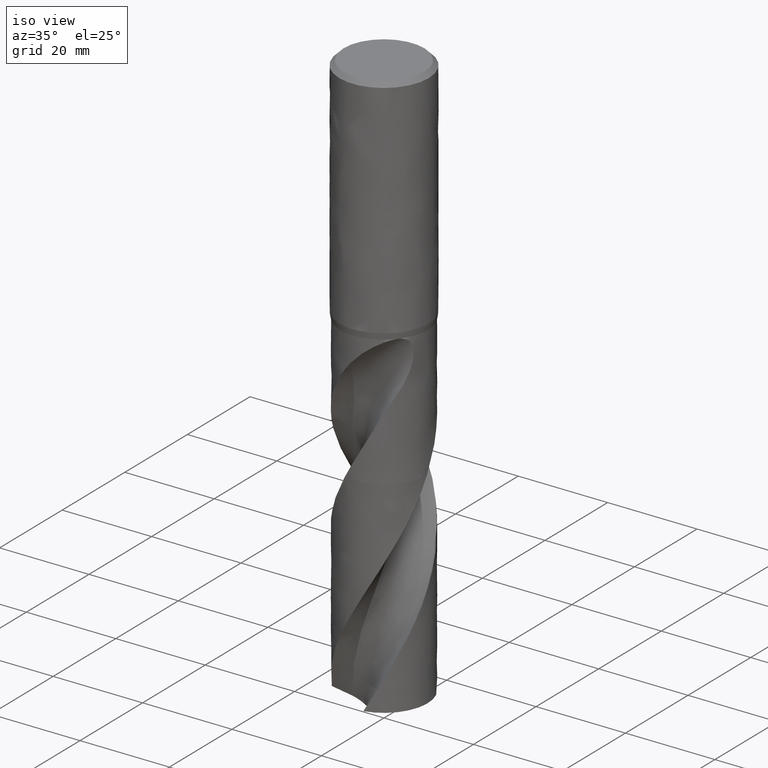
[diagram: clean part render]
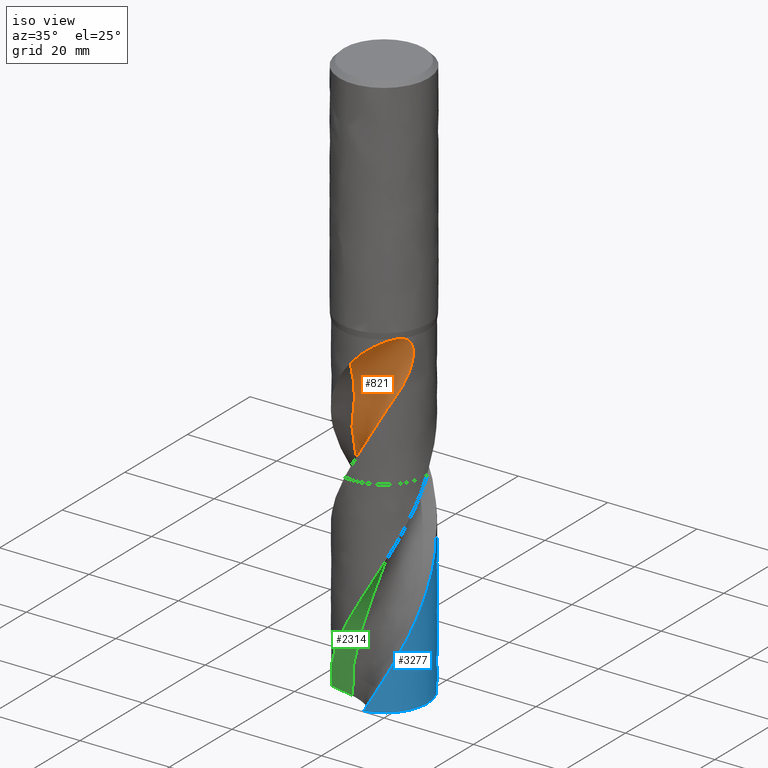
[diagram: same view with three faces highlighted in distinct colors, each labeled with its STEP entity id]
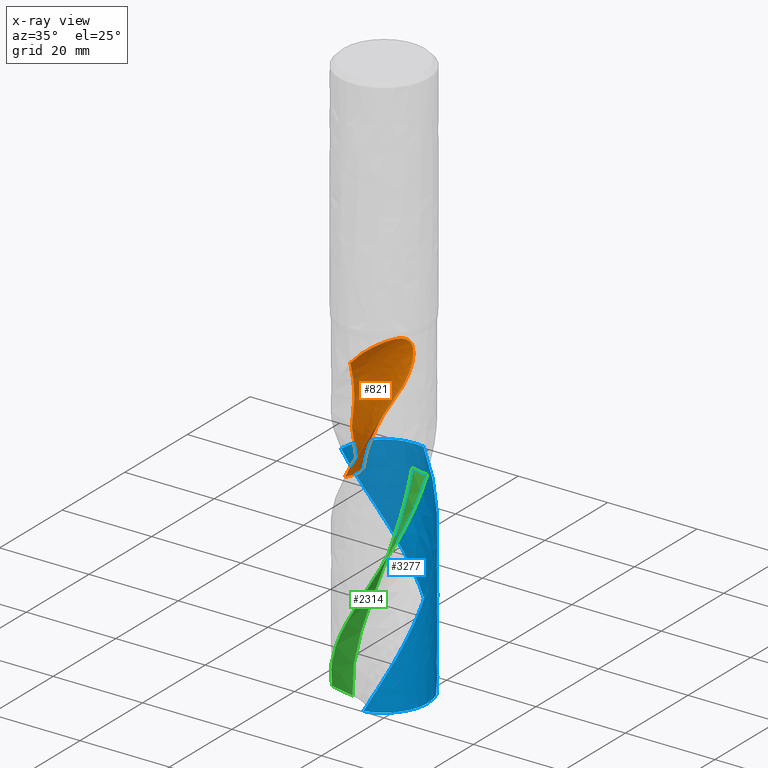
[diagram: x-ray of the same camera — body ghosted, the three highlighted faces saturated]
A machine part, iso view with three faces highlighted in distinct colors.
The next image is the same camera in x-ray (body ghosted, the three faces saturated) — at least one of them is partly hidden behind the body in this view.
Their STEP definitions:

[orange] entity #821 — the highlighted face is a freeform B-spline surface patch.
#72 = EDGE_CURVE('', #73, #75, #77, .T.);
#73 = VERTEX_POINT('', #74);
#74 = CARTESIAN_POINT('', (-0.703018739486111, -9.72462156857177, -57.7352722970573));
#75 = VERTEX_POINT('', #76);
#76 = CARTESIAN_POINT('', (7.26526064867534, -6.50219099279693, -52.));
#77 = B_SPLINE_CURVE_WITH_KNOTS('', 3, (#78, #79, #80, #81, #82, #83, #84, #85, #86, #87, #88, #89, #90, #91, #92, #93, #94, #95, #96, #97, #98, #99, #100, #101, #102, #103, #104, #105, #106, #107, #108, #109, #110, #111, #112, #113, #114, #115, #116, #117, #118, #119, #120, #121, #122, #123, #124, #125, #126, #127, #128, #129, #130, #131, #132, #133, #134, #135, #136, #137, #138, #139, #140, #141, #142, #143, #144, #145, #146, #147), .UNSPECIFIED., .F., .U., (4, 3, 3, 3, 3, 3, 3, 3, 3, 3, 3, 3, 3, 3, 3, 3, 3, 3, 3, 3, 3, 3, 3, 4), (0., 0.668796727947561, 0.96510837667578, 1.05275079064584, 1.14043665692609, 1.8123156379216, 2.4844695739943, 3.15686676080293, 3.82946020925694, 4.50220617333755, 5.17506951678331, 5.84800870568808, 6.52097228867763, 6.96780016498754, 7.41458997084963, 7.86131837646178, 8.30795565378062, 8.75446342294869, 9.20079160034441, 9.64687432561131, 10.0926247082068, 10.389021729168, 10.6852424124216, 10.8194531774775), .UNSPECIFIED.);
#78 = CARTESIAN_POINT('', (-0.703018739486111, -9.72462156857177, -57.7352722970573));
#79 = CARTESIAN_POINT('', (-0.559413642409937, -9.73500316271591, -57.5650707006801));
#80 = CARTESIAN_POINT('', (-0.412990182537439, -9.74238948308194, -57.396996891854));
#81 = CARTESIAN_POINT('', (-0.264002114345941, -9.74642513353593, -57.2312107227246));
#82 = CARTESIAN_POINT('', (-0.197992670397051, -9.74821313606306, -57.1577588485479));
#83 = CARTESIAN_POINT('', (-0.131471291412033, -9.74934385345488, -57.0847448243855));
#84 = CARTESIAN_POINT('', (-0.0644632539937609, -9.74978689453695, -57.0121821059999));
#85 = CARTESIAN_POINT('', (-0.0446437626577329, -9.74991793626308, -56.9907196632278));
#86 = CARTESIAN_POINT('', (-0.0247813512393519, -9.74998882462412, -56.9692963233762));
#87 = CARTESIAN_POINT('', (-0.00487668933625337, -9.74999878040511, -56.9479124464147));
#88 = CARTESIAN_POINT('', (0.0150378411168334, -9.75000874112208, -56.9265179675218));
#89 = CARTESIAN_POINT('', (0.0349948287104689, -9.74995770890153, -56.905162813656));
#90 = CARTESIAN_POINT('', (0.0549935956856399, -9.74984490668613, -56.8838473510851));
#91 = CARTESIAN_POINT('', (0.208230961597039, -9.74898057768136, -56.7205210149361));
#92 = CARTESIAN_POINT('', (0.363967355089518, -9.74448751669097, -56.5594774290815));
#93 = CARTESIAN_POINT('', (0.521883614350657, -9.73602267320054, -56.40089391499));
#94 = CARTESIAN_POINT('', (0.679864498162469, -9.72755436561649, -56.2422455032851));
#95 = CARTESIAN_POINT('', (0.840110966368966, -9.71510639425705, -56.0859746578127));
#96 = CARTESIAN_POINT('', (1.00227699585713, -9.69834732434238, -55.9322856768302));
#97 = CARTESIAN_POINT('', (1.16450171280347, -9.68158218936452, -55.7785410762111));
#98 = CARTESIAN_POINT('', (1.32874194714197, -9.66049286962829, -55.6272919377121));
#99 = CARTESIAN_POINT('', (1.4946199001273, -9.6347605758601, -55.4787736407602));
#100 = CARTESIAN_POINT('', (1.66054627015039, -9.60902077125989, -55.3302119937676));
#101 = CARTESIAN_POINT('', (1.82821274229019, -9.57861911225321, -55.1842850379837));
#102 = CARTESIAN_POINT('', (1.99719582353614, -9.54325462525529, -55.0412510137831));
#103 = CARTESIAN_POINT('', (2.16621722296759, -9.50788211909378, -54.898184555541));
#104 = CARTESIAN_POINT('', (2.33667317992767, -9.46751985650633, -54.7579126648841));
#105 = CARTESIAN_POINT('', (2.50811136508783, -9.42188289994719, -54.6207497107133));
#106 = CARTESIAN_POINT('', (2.67957946243834, -9.37623798074349, -54.4835628246256));
#107 = CARTESIAN_POINT('', (2.8521619379273, -9.325281231654, -54.3493799551304));
#108 = CARTESIAN_POINT('', (3.02537106050942, -9.2687447880623, -54.2185853100837));
#109 = CARTESIAN_POINT('', (3.19859970730181, -9.21220197165723, -54.0877759218058));
#110 = CARTESIAN_POINT('', (3.37260413873807, -9.1500292293128, -53.9602421666179));
#111 = CARTESIAN_POINT('', (3.54685302219065, -9.08197850905721, -53.8364569643261));
#112 = CARTESIAN_POINT('', (3.7211082221754, -9.01392532195905, -53.7126672748135));
#113 = CARTESIAN_POINT('', (3.89577765520536, -8.93992687956001, -53.5925045365102));
#114 = CARTESIAN_POINT('', (4.0702755369514, -8.85976055281941, -53.4765569295981));
#115 = CARTESIAN_POINT('', (4.18613695931068, -8.80653248753549, -53.3995711546331));
#116 = CARTESIAN_POINT('', (4.30199168437579, -8.75055429577885, -53.3243989547596));
#117 = CARTESIAN_POINT('', (4.41765176919551, -8.69176925867965, -53.2512486310098));
#118 = CARTESIAN_POINT('', (4.53330199959152, -8.63298923015939, -53.1781045397843));
#119 = CARTESIAN_POINT('', (4.64882049955166, -8.57137070924396, -53.1069418933541));
#120 = CARTESIAN_POINT('', (4.76400317837511, -8.50686626887011, -53.038005304406));
#121 = CARTESIAN_POINT('', (4.87917002817745, -8.44237069304221, -52.9690781890933));
#122 = CARTESIAN_POINT('', (4.99407110173374, -8.37495057078748, -52.9023342376093));
#123 = CARTESIAN_POINT('', (5.10848262695311, -8.30457134656077, -52.8380629569754));
#124 = CARTESIAN_POINT('', (5.22287081332298, -8.23420647901813, -52.773804787064));
#125 = CARTESIAN_POINT('', (5.33684812976299, -8.16083507421195, -52.7119736585747));
#126 = CARTESIAN_POINT('', (5.45016634853573, -8.08444103035508, -52.6529150815261));
#127 = CARTESIAN_POINT('', (5.56345170925182, -8.00806913792142, -52.5938736292619));
#128 = CARTESIAN_POINT('', (5.67616728944354, -7.92861584136986, -52.5375560934555));
#129 = CARTESIAN_POINT('', (5.78803383006276, -7.84609230012297, -52.4843783328605));
#130 = CARTESIAN_POINT('', (5.89985537636904, -7.76360195101753, -52.4312219611168));
#131 = CARTESIAN_POINT('', (6.01093056774259, -7.67796770046116, -52.3811535263759));
#132 = CARTESIAN_POINT('', (6.12093990971028, -7.58924203209489, -52.3346775516835));
#133 = CARTESIAN_POINT('', (6.23088875353212, -7.50056515720679, -52.2882271358231));
#134 = CARTESIAN_POINT('', (6.33989156486816, -7.40870316700581, -52.2453141808809));
#135 = CARTESIAN_POINT('', (6.44757559273822, -7.31377255429278, -52.2065545828065));
#136 = CARTESIAN_POINT('', (6.55517939334222, -7.21891266723586, -52.167823861592));
#137 = CARTESIAN_POINT('', (6.6616065929746, -7.12086283219971, -52.1331890108792));
#138 = CARTESIAN_POINT('', (6.76641275368254, -7.01984034339829, -52.1034036071267));
#139 = CARTESIAN_POINT('', (6.83610250612051, -6.95266650373387, -52.0835981166884));
#140 = CARTESIAN_POINT('', (6.90513421192183, -6.88412297402092, -52.065921986466));
#141 = CARTESIAN_POINT('', (6.97335382333, -6.81431115041343, -52.0506367751314));
#142 = CARTESIAN_POINT('', (7.04153284833198, -6.7445408604789, -52.0353606575425));
#143 = CARTESIAN_POINT('', (7.10895690619605, -6.67344564003572, -52.0224601453726));
#144 = CARTESIAN_POINT('', (7.17544861310705, -6.6011693813036, -52.0122313667501));
#145 = CARTESIAN_POINT('', (7.20557447317993, -6.56842267410792, -52.0075969428825));
#146 = CARTESIAN_POINT('', (7.23551794214868, -6.53542417766532, -52.0035098424248));
#147 = CARTESIAN_POINT('', (7.26526064867534, -6.50219099279692, -52.));
#347 = EDGE_CURVE('', #348, #75, #350, .T.);
#348 = VERTEX_POINT('', #349);
#349 = CARTESIAN_POINT('', (7.51412799145599, -6.21855582379056, -51.98));
#350 = B_SPLINE_CURVE_WITH_KNOTS('', 3, (#351, #352, #353, #354, #355, #356, #357), .UNSPECIFIED., .F., .U., (4, 3, 4), (0., 0.296049587537046, 0.377970753419769), .UNSPECIFIED.);
#351 = CARTESIAN_POINT('', (7.51412799144816, -6.21855582380002, -51.98));
#352 = CARTESIAN_POINT('', (7.4511945592712, -6.29456728418181, -51.9801189427339));
#353 = CARTESIAN_POINT('', (7.38646042565485, -6.3691987627226, -51.9844921841886));
#354 = CARTESIAN_POINT('', (7.32040814158725, -6.44207629828412, -51.9925130147098));
#355 = CARTESIAN_POINT('', (7.30213052747182, -6.46224255735419, -51.9947324935245));
#356 = CARTESIAN_POINT('', (7.2837450828489, -6.48228270633455, -51.9972321321827));
#357 = CARTESIAN_POINT('', (7.2652606486753, -6.50219099279698, -52.));
#359 = EDGE_CURVE('', #360, #348, #362, .T.);
#360 = VERTEX_POINT('', #361);
#361 = CARTESIAN_POINT('', (7.51939510414562, -6.2121858691875, -51.98));
#362 = LINE('', #363, #364);
#363 = CARTESIAN_POINT('', (7.51939510414562, -6.2121858691875, -51.98));
#364 = VECTOR('', #365, 0.00826551860020114);
#365 = DIRECTION('', (-0.00526711268962554, -0.00636995460306089, 0.));
#367 = EDGE_CURVE('', #360, #368, #370, .T.);
#368 = VERTEX_POINT('', #369);
#369 = CARTESIAN_POINT('', (7.7373310608423, -5.93263921496369, -52.));
#370 = B_SPLINE_CURVE_WITH_KNOTS('', 3, (#371, #372, #373, #374, #375, #376, #377), .UNSPECIFIED., .F., .U., (4, 3, 4), (0., 0.295709936512374, 0.355127567395402), .UNSPECIFIED.);
#371 = CARTESIAN_POINT('', (7.51939510415096, -6.21218586918103, -51.98));
#372 = CARTESIAN_POINT('', (7.58215904862422, -6.13618117295621, -51.980118970366));
#373 = CARTESIAN_POINT('', (7.64326652272873, -6.05861989589328, -51.984505674494));
#374 = CARTESIAN_POINT('', (7.70212069303031, -5.98009680112696, -51.9937981959198));
#375 = CARTESIAN_POINT('', (7.7139463875205, -5.96431898751797, -51.9956653621522));
#376 = CARTESIAN_POINT('', (7.72568497297304, -5.94849774058729, -51.9977309551392));
#377 = CARTESIAN_POINT('', (7.73733106084232, -5.93263921496367, -52.));
#752 = VERTEX_POINT('', #753);
#753 = CARTESIAN_POINT('', (-5.79487165966513, -0.700667770575247, -81.25));
#759 = EDGE_CURVE('', #752, #73, #760, .T.);
#760 = (
   BOUNDED_CURVE ()
   B_SPLINE_CURVE (3, (#761, #762, #763, #764, #765, #766, #767, #768, #769, #770, #771, #772, #773, #774, #775, #776, #777), .UNSPECIFIED., .F., .U.)
   B_SPLINE_CURVE_WITH_KNOTS ((4, 1, 1, 1, 1, 1, 1, 1, 1, 1, 1, 1, 1, 1, 4), (49.8, 50.3172727272727, 52.1143181818182, 53.9113636363636, 55.7084090909091, 57.5054545454545, 59.3025, 61.0995454545454, 62.8965909090909, 64.6936363636364, 66.4906818181818, 68.2877272727273, 70.0847727272727, 71.8818181818182, 73.3147277029427), .UNSPECIFIED.)
   CURVE ()
   GEOMETRIC_REPRESENTATION_ITEM ()
   RATIONAL_B_SPLINE_CURVE ((1., 1., 1., 1., 1., 1., 1., 1., 1., 1., 1., 1., 1., 1., 1., 1., 1.))
   REPRESENTATION_ITEM ('')
);
#761 = CARTESIAN_POINT('', (-5.79487165966514, -0.700667770575247, -81.25));
#762 = CARTESIAN_POINT('', (-5.78917496364109, -0.759402403058398, -81.0775757575758));
#763 = CARTESIAN_POINT('', (-5.75977905866674, -1.02191085186747, -80.3061363636364));
#764 = CARTESIAN_POINT('', (-5.67659892073527, -1.48519813180025, -78.9356818181818));
#765 = CARTESIAN_POINT('', (-5.50308173658327, -2.07881775692901, -77.1386363636364));
#766 = CARTESIAN_POINT('', (-5.27482288273792, -2.65664709418314, -75.3415909090909));
#767 = CARTESIAN_POINT('', (-4.95947482146235, -3.19400212352897, -73.5445454545455));
#768 = CARTESIAN_POINT('', (-4.55775246767302, -3.6681269597415, -71.7475));
#769 = CARTESIAN_POINT('', (-4.0825644252744, -4.06713809022863, -69.9504545454546));
#770 = CARTESIAN_POINT('', (-3.5565877189557, -4.37363731487611, -68.1534090909091));
#771 = CARTESIAN_POINT('', (-3.16794410534095, -4.84420591923389, -66.3563636363637));
#772 = CARTESIAN_POINT('', (-2.81798559756797, -5.48042521500672, -64.5593181818182));
#773 = CARTESIAN_POINT('', (-2.45348099746557, -6.31426334227727, -62.7622727272728));
#774 = CARTESIAN_POINT('', (-2.00243652108772, -7.3517922324343, -60.9652272727273));
#775 = CARTESIAN_POINT('', (-1.43558909056954, -8.50376524055654, -59.2895604626555));
#776 = CARTESIAN_POINT('', (-0.948779759091294, -9.33870062567866, -58.2129088040988));
#777 = CARTESIAN_POINT('', (-0.703018739486111, -9.72462156857177, -57.7352722970573));
#821 = ADVANCED_FACE('', (#822), #1126, .T.);
#822 = FACE_OUTER_BOUND('', #823, .T.);
#823 = EDGE_LOOP('', (#824, #914, #965, #976, #1121, #1122, #1123, #1124, #1125));
#824 = ORIENTED_EDGE('', *, *, #825, .T.);
#825 = EDGE_CURVE('', #752, #826, #828, .T.);
#826 = VERTEX_POINT('', #827);
#827 = CARTESIAN_POINT('', (-2.1303313621447, -9.51442001844898, -81.25));
#828 = B_SPLINE_CURVE_WITH_KNOTS('', 3, (#829, #830, #831, #832, #833, #834, #835, #836, #837, #838, #839, #840, #841, #842, #843, #844, #845, #846, #847, #848, #849, #850, #851, #852, #853, #854, #855, #856, #857, #858, #859, #860, #861, #862, #863, #864, #865, #866, #867, #868, #869, #870, #871, #872, #873, #874, #875, #876, #877, #878, #879, #880, #881, #882, #883, #884, #885, #886, #887, #888, #889, #890, #891, #892, #893, #894, #895, #896, #897, #898, #899, #900, #901, #902, #903, #904, #905, #906, #907, #908, #909, #910, #911, #912, #913), .UNSPECIFIED., .F., .U., (4, 3, 3, 3, 3, 3, 3, 3, 3, 3, 3, 3, 3, 3, 3, 3, 3, 3, 3, 3, 3, 3, 3, 3, 3, 3, 3, 3, 4), (0., 0.445438478742178, 0.89053582433214, 1.33529858425115, 1.77973217103875, 2.22384093205399, 2.66762820456157, 3.11109635764876, 3.55424682209733, 3.99708010900506, 4.43959581765818, 4.88179263288638, 5.32366831187187, 5.52035944247492, 5.60786094109893, 5.6467910889325, 6.09220446272866, 6.53727722058495, 6.98201582457693, 7.42642560745706, 7.87051084128652, 8.31427479151568, 8.75771975798971, 9.20084710397753, 9.64365727399644, 10.0861498009137, 10.5283233025367, 10.9701754676464, 11.1611266697053), .UNSPECIFIED.);
#829 = CARTESIAN_POINT('', (-5.79487165966514, -0.700667770575248, -81.25));
#830 = CARTESIAN_POINT('', (-5.650055718771, -0.733447384346021, -81.25));
#831 = CARTESIAN_POINT('', (-5.50638472364921, -0.771772103794922, -81.25));
#832 = CARTESIAN_POINT('', (-5.36448272780797, -0.815475460557196, -81.25));
#833 = CARTESIAN_POINT('', (-5.22268940572857, -0.859145347683222, -81.25));
#834 = CARTESIAN_POINT('', (-5.08245730758918, -0.908248780882545, -81.25));
#835 = CARTESIAN_POINT('', (-4.94439461800622, -0.962572799263302, -81.25));
#836 = CARTESIAN_POINT('', (-4.80643571200697, -1.0168559815476, -81.25));
#837 = CARTESIAN_POINT('', (-4.6704437328964, -1.07643027834599, -81.25));
#838 = CARTESIAN_POINT('', (-4.5370075905335, -1.14103770465851, -81.25));
#839 = CARTESIAN_POINT('', (-4.40367020552347, -1.20559731440285, -81.25));
#840 = CARTESIAN_POINT('', (-4.27269261268322, -1.27527568315273, -81.25));
#841 = CARTESIAN_POINT('', (-4.14464116884227, -1.3497715164718, -81.25));
#842 = CARTESIAN_POINT('', (-4.01668331470828, -1.4242129025859, -81.25));
#843 = CARTESIAN_POINT('', (-3.89146309717154, -1.50357188260932, -81.25));
#844 = CARTESIAN_POINT('', (-3.7695211874044, -1.58750580330595, -81.25));
#845 = CARTESIAN_POINT('', (-3.64766755088478, -1.67137896458219, -81.25));
#846 = CARTESIAN_POINT('', (-3.52891228316294, -1.75994101932054, -81.25));
#847 = CARTESIAN_POINT('', (-3.41376739999561, -1.85281013041733, -81.25));
#848 = CARTESIAN_POINT('', (-3.29870531543621, -1.94561246101197, -81.25));
#849 = CARTESIAN_POINT('', (-3.18708323205514, -2.04284887596128, -81.25));
#850 = CARTESIAN_POINT('', (-3.07938171960083, -2.1441007405466, -81.25));
#851 = CARTESIAN_POINT('', (-2.97175736160875, -2.24528007102369, -81.25));
#852 = CARTESIAN_POINT('', (-2.86789366486767, -2.35061413892586, -81.25));
#853 = CARTESIAN_POINT('', (-2.76823715696246, -2.45965009529411, -81.25));
#854 = CARTESIAN_POINT('', (-2.66865197653775, -2.56860801099834, -81.25));
#855 = CARTESIAN_POINT('', (-2.57312539837042, -2.68141848522746, -81.25));
#856 = CARTESIAN_POINT('', (-2.48206752032289, -2.79759721994391, -81.25));
#857 = CARTESIAN_POINT('', (-2.39107494450723, -2.91369263698555, -81.25));
#858 = CARTESIAN_POINT('', (-2.30441458173085, -3.03331743264568, -81.25));
#859 = CARTESIAN_POINT('', (-2.22245793413602, -3.15595879037894, -81.25));
#860 = CARTESIAN_POINT('', (-2.14056034757685, -3.27851176814775, -81.25));
#861 = CARTESIAN_POINT('', (-2.06324278812382, -3.40425188909768, -81.25));
#862 = CARTESIAN_POINT('', (-1.99083622946069, -3.53264089683113, -81.25));
#863 = CARTESIAN_POINT('', (-1.91848225455527, -3.66093666471723, -81.25));
#864 = CARTESIAN_POINT('', (-1.85092901050433, -3.79206033356708, -81.25));
#865 = CARTESIAN_POINT('', (-1.78846525342089, -3.92545141570198, -81.25));
#866 = CARTESIAN_POINT('', (-1.76066090123146, -3.9848274891209, -81.25));
#867 = CARTESIAN_POINT('', (-1.73385108599112, -4.04467950769174, -81.25));
#868 = CARTESIAN_POINT('', (-1.70805853356387, -4.10495673668088, -81.25));
#869 = CARTESIAN_POINT('', (-1.69658426431846, -4.13177211901806, -81.25));
#870 = CARTESIAN_POINT('', (-1.68531023113301, -4.15867406930673, -81.25));
#871 = CARTESIAN_POINT('', (-1.67423832565911, -4.18565807371272, -81.25));
#872 = CARTESIAN_POINT('', (-1.66931234240537, -4.19766348273069, -81.25));
#873 = CARTESIAN_POINT('', (-1.66442627865889, -4.20968534891356, -81.25));
#874 = CARTESIAN_POINT('', (-1.65958029670401, -4.22172327297039, -81.25));
#875 = CARTESIAN_POINT('', (-1.60413573016637, -4.35945335276802, -81.25));
#876 = CARTESIAN_POINT('', (-1.55390194674591, -4.49939693624681, -81.25));
#877 = CARTESIAN_POINT('', (-1.50909711879584, -4.64094622883414, -81.25));
#878 = CARTESIAN_POINT('', (-1.46432655393593, -4.78238727602928, -81.25));
#879 = CARTESIAN_POINT('', (-1.42491189201081, -4.92563610467067, -81.25));
#880 = CARTESIAN_POINT('', (-1.39102405498403, -5.07007151518755, -81.25));
#881 = CARTESIAN_POINT('', (-1.35716166043041, -5.21439848579272, -81.25));
#882 = CARTESIAN_POINT('', (-1.32876889005426, -5.36011864423298, -81.25));
#883 = CARTESIAN_POINT('', (-1.30596868469553, -5.50660102148216, -81.25));
#884 = CARTESIAN_POINT('', (-1.28318533685447, -5.65297509579176, -81.25));
#885 = CARTESIAN_POINT('', (-1.26595342788655, -5.80032129268378, -81.25));
#886 = CARTESIAN_POINT('', (-1.25434746187178, -5.94800254444481, -81.25));
#887 = CARTESIAN_POINT('', (-1.24274997160484, -6.0955759457221, -81.25));
#888 = CARTESIAN_POINT('', (-1.23675350229713, -6.24369636189629, -81.25));
#889 = CARTESIAN_POINT('', (-1.23638394253939, -6.39172431186056, -81.25));
#890 = CARTESIAN_POINT('', (-1.2360146501481, -6.53964516762515, -81.25));
#891 = CARTESIAN_POINT('', (-1.24126358584812, -6.68768633284561, -81.25));
#892 = CARTESIAN_POINT('', (-1.25210812112224, -6.83520959203442, -81.25));
#893 = CARTESIAN_POINT('', (-1.26294486119221, -6.9826268094342, -81.25));
#894 = CARTESIAN_POINT('', (-1.27938470361027, -7.129738479178, -81.25));
#895 = CARTESIAN_POINT('', (-1.30135687684578, -7.2759113033436, -81.25));
#896 = CARTESIAN_POINT('', (-1.32331331236212, -7.42197943022545, -81.25));
#897 = CARTESIAN_POINT('', (-1.35082561772212, -7.56731943412406, -81.25));
#898 = CARTESIAN_POINT('', (-1.38377552520294, -7.71130653892293, -81.25));
#899 = CARTESIAN_POINT('', (-1.41670184822452, -7.85519058249147, -81.25));
#900 = CARTESIAN_POINT('', (-1.45510511050732, -7.99792961642851, -81.25));
#901 = CARTESIAN_POINT('', (-1.49882046313067, -8.13891092258777, -81.25));
#902 = CARTESIAN_POINT('', (-1.54250445721453, -8.27979109796367, -81.25));
#903 = CARTESIAN_POINT('', (-1.59155535062665, -8.41911743232396, -81.25));
#904 = CARTESIAN_POINT('', (-1.64576289032544, -8.55629271359893, -81.25));
#905 = CARTESIAN_POINT('', (-1.69993134783584, -8.69336909515969, -81.25));
#906 = CARTESIAN_POINT('', (-1.75932632060481, -8.82849317237358, -81.25));
#907 = CARTESIAN_POINT('', (-1.82369358303993, -8.96108657981699, -81.25));
#908 = CARTESIAN_POINT('', (-1.88801406847097, -9.09358362892346, -81.25));
#909 = CARTESIAN_POINT('', (-1.95739127809331, -9.22374252424689, -81.25));
#910 = CARTESIAN_POINT('', (-2.03152869078605, -9.35100696117737, -81.25));
#911 = CARTESIAN_POINT('', (-2.06356797720146, -9.4060056669214, -81.25));
#912 = CARTESIAN_POINT('', (-2.09651407554777, -9.46049632574578, -81.25));
#913 = CARTESIAN_POINT('', (-2.1303313621447, -9.51442001844897, -81.25));
#914 = ORIENTED_EDGE('', *, *, #915, .F.);
#915 = EDGE_CURVE('', #916, #826, #918, .T.);
#916 = VERTEX_POINT('', #917);
#917 = CARTESIAN_POINT('', (3.62466349801125, -9.05120514219984, -70.9546777896775));
#918 = B_SPLINE_CURVE_WITH_KNOTS('', 3, (#919, #920, #921, #922, #923, #924, #925, #926, #927, #928, #929, #930, #931, #932, #933, #934, #935, #936, #937, #938, #939, #940, #941, #942, #943, #944, #945, #946, #947, #948, #949, #950, #951, #952, #953, #954, #955, #956, #957, #958, #959, #960, #961, #962, #963, #964), .UNSPECIFIED., .F., .U., (4, 3, 3, 3, 3, 3, 3, 3, 3, 3, 3, 3, 3, 3, 3, 4), (0., 0.996956880423549, 1.9937032679824, 2.99039270729294, 3.98701310341876, 4.98349897480723, 5.64803103965125, 6.31257464400099, 6.97709494478145, 7.4202058672048, 7.55155081328549, 8.55038883735532, 9.21596897513578, 10.7148225179918, 11.7133785365005, 11.8470174869791), .UNSPECIFIED.);
#919 = CARTESIAN_POINT('', (3.62466349801127, -9.05120514219982, -70.9546777896775));
#920 = CARTESIAN_POINT('', (3.47744827118327, -9.11015924285843, -71.2467188523294));
#921 = CARTESIAN_POINT('', (3.32791430311122, -9.16586845552113, -71.5382737034224));
#922 = CARTESIAN_POINT('', (3.17647195253871, -9.21805434648451, -71.8294398733439));
#923 = CARTESIAN_POINT('', (3.02506157680366, -9.27022921916024, -72.1205445677869));
#924 = CARTESIAN_POINT('', (2.87170322524558, -9.31890078783328, -72.4112927111839));
#925 = CARTESIAN_POINT('', (2.71657159443329, -9.36390617062799, -72.7016338122818));
#926 = CARTESIAN_POINT('', (2.56144882693342, -9.40890898207882, -72.9919583249905));
#927 = CARTESIAN_POINT('', (2.40452957023712, -9.45025341019727, -73.2819199877046));
#928 = CARTESIAN_POINT('', (2.24596403477693, -9.48778928699913, -73.5714449048218));
#929 = CARTESIAN_POINT('', (2.08740948355026, -9.52532256359637, -73.8609497658197));
#930 = CARTESIAN_POINT('', (1.92718412093147, -9.55905048972008, -74.1500634708036));
#931 = CARTESIAN_POINT('', (1.76562927738669, -9.5887983217315, -74.4388132866062));
#932 = CARTESIAN_POINT('', (1.60409624066321, -9.61854213835322, -74.7275241266933));
#933 = CARTESIAN_POINT('', (1.44120850921204, -9.64431125883363, -75.0159175234165));
#934 = CARTESIAN_POINT('', (1.27734060090512, -9.66596611773922, -75.3040319824028));
#935 = CARTESIAN_POINT('', (1.1680610992127, -9.68040721371019, -75.4961684710766));
#936 = CARTESIAN_POINT('', (1.05833496068669, -9.69302098828012, -75.6881975630188));
#937 = CARTESIAN_POINT('', (0.948275465637584, -9.70377625676055, -75.8801304074523));
#938 = CARTESIAN_POINT('', (0.838214059420847, -9.71453171200471, -76.0720665847725));
#939 = CARTESIAN_POINT('', (0.727811206402194, -9.72342896762048, -76.2639204023718));
#940 = CARTESIAN_POINT('', (0.617218128512905, -9.73044406909751, -76.4557240743764));
#941 = CARTESIAN_POINT('', (0.506628928794192, -9.73745892457578, -76.6475210203964));
#942 = CARTESIAN_POINT('', (0.395841533906559, -9.7425918473345, -76.839281821419));
#943 = CARTESIAN_POINT('', (0.285044772086156, -9.74583241585377, -77.0310598808527));
#944 = CARTESIAN_POINT('', (0.211164026420299, -9.74799326978716, -77.1589400264501));
#945 = CARTESIAN_POINT('', (0.137284077093422, -9.74931318800561, -77.2868375998271));
#946 = CARTESIAN_POINT('', (0.0634306764708085, -9.74979366701072, -77.4147508902401));
#947 = CARTESIAN_POINT('', (0.0415393837227031, -9.74993608843575, -77.4526663723059));
#948 = CARTESIAN_POINT('', (0.0196500511138473, -9.7500047648447, -77.4905833348263));
#949 = CARTESIAN_POINT('', (-0.00223690797404234, -9.74999974339705, -77.5285015858276));
#950 = CARTESIAN_POINT('', (-0.168680517877501, -9.74996155682803, -77.8168582530346));
#951 = CARTESIAN_POINT('', (-0.334998327441473, -9.74566147793435, -78.1053183115855));
#952 = CARTESIAN_POINT('', (-0.501036055960345, -9.73711779073393, -78.3937823862568));
#953 = CARTESIAN_POINT('', (-0.611676031172801, -9.73142466695712, -78.586001699036));
#954 = CARTESIAN_POINT('', (-0.722202871733261, -9.72384676993541, -78.7782395794634));
#955 = CARTESIAN_POINT('', (-0.832581759622021, -9.71438663084523, -78.9704605118706));
#956 = CARTESIAN_POINT('', (-1.08114955450887, -9.69308286562396, -79.4033325421424));
#957 = CARTESIAN_POINT('', (-1.32902699699821, -9.66221814962052, -79.8362363560337));
#958 = CARTESIAN_POINT('', (-1.57529260482135, -9.62189966738352, -80.2690708094368));
#959 = CARTESIAN_POINT('', (-1.73935800401635, -9.59503896222204, -80.557430836688));
#960 = CARTESIAN_POINT('', (-1.90273503716934, -9.56398046259052, -80.8458227956314));
#961 = CARTESIAN_POINT('', (-2.06516541977675, -9.5287770353261, -81.1342106378266));
#962 = CARTESIAN_POINT('', (-2.0869038355042, -9.52406568314789, -81.1728062176913));
#963 = CARTESIAN_POINT('', (-2.10862664683223, -9.51927982447466, -81.211403860797));
#964 = CARTESIAN_POINT('', (-2.1303313621447, -9.51442001844898, -81.25));
#965 = ORIENTED_EDGE('', *, *, #966, .T.);
#966 = EDGE_CURVE('', #916, #967, #969, .T.);
#967 = VERTEX_POINT('', #968);
#968 = CARTESIAN_POINT('', (5.85396296018932, -7.79702620623603, -66.465219494543));
#969 = B_SPLINE_CURVE_WITH_KNOTS('', 3, (#970, #971, #972, #973, #974, #975), .UNSPECIFIED., .F., .U., (4, 1, 1, 4), (60.0953222103225, 61.0995454545454, 62.8965909090909, 64.584780505457), .UNSPECIFIED.);
#970 = CARTESIAN_POINT('', (3.62466349801124, -9.05120514219984, -70.9546777896775));
#971 = CARTESIAN_POINT('', (3.79250059681841, -8.95528486819645, -70.6199367082699));
#972 = CARTESIAN_POINT('', (4.2468574341614, -8.66633345692311, -69.6861804753471));
#973 = CARTESIAN_POINT('', (4.89859638942705, -8.11710649778732, -68.1896943769689));
#974 = CARTESIAN_POINT('', (5.51873552934184, -7.88519390310293, -67.0279493599984));
#975 = CARTESIAN_POINT('', (5.85396296018932, -7.79702620623603, -66.465219494543));
#976 = ORIENTED_EDGE('', *, *, #977, .T.);
#977 = EDGE_CURVE('', #967, #368, #978, .T.);
#978 = B_SPLINE_CURVE_WITH_KNOTS('', 3, (#979, #980, #981, #982, #983, #984, #985, #986, #987, #988, #989, #990, #991, #992, #993, #994, #995, #996, #997, #998, #999, #1000, #1001, #1002, #1003, #1004, #1005, #1006, #1007, #1008, #1009, #1010, #1011, #1012, #1013, #1014, #1015, #1016, #1017, #1018, #1019, #1020, #1021, #1022, #1023, #1024, #1025, #1026, #1027, #1028, #1029, #1030, #1031, #1032, #1033, #1034, #1035, #1036, #1037, #1038, #1039, #1040, #1041, #1042, #1043, #1044, #1045, #1046, #1047, #1048, #1049, #1050, #1051, #1052, #1053, #1054, #1055, #1056, #1057, #1058, #1059, #1060, #1061, #1062, #1063, #1064, #1065, #1066, #1067, #1068, #1069, #1070, #1071, #1072, #1073, #1074, #1075, #1076, #1077, #1078, #1079, #1080, #1081, #1082, #1083, #1084, #1085, #1086, #1087, #1088, #1089, #1090, #1091, #1092, #1093, #1094, #1095, #1096, #1097, #1098, #1099, #1100, #1101, #1102, #1103, #1104, #1105, #1106, #1107, #1108, #1109, #1110, #1111, #1112, #1113, #1114, #1115, #1116, #1117, #1118, #1119, #1120), .UNSPECIFIED., .F., .U., (4, 3, 3, 3, 3, 3, 3, 3, 3, 3, 3, 3, 3, 3, 3, 3, 3, 3, 3, 3, 3, 3, 3, 3, 3, 3, 3, 3, 3, 3, 3, 3, 3, 3, 3, 3, 3, 3, 3, 3, 3, 3, 3, 3, 3, 3, 3, 4), (0., 0.443399391363095, 1.10843741935482, 1.77323257912587, 2.43773967301963, 2.88072137979201, 3.32361303062401, 3.76641388813821, 4.20912359200581, 4.65174189198182, 5.09426273232538, 5.53668732142374, 5.97902052602293, 6.42126780689816, 6.8634347886953, 7.30552547606237, 7.74755192133971, 8.1895281753715, 8.63146997627567, 9.07339222310723, 9.51531564386175, 9.95727054270665, 10.3992927541893, 10.8414251299779, 11.2837204169556, 11.7262513928184, 12.1691106039298, 12.6124174553603, 13.0563268799099, 13.3524202814033, 13.4108329233773, 13.7073883908102, 14.0043325411541, 14.3017151624936, 14.5995685531594, 14.7977741703294, 14.9960987314737, 15.1945221422452, 15.393015334973, 15.5915415885284, 15.7900594869459, 15.9885270580721, 16.1869061380134, 16.3851658917117, 16.58328476593, 16.8810236149624, 17.1782130802422, 17.332110896844), .UNSPECIFIED.);
#979 = CARTESIAN_POINT('', (5.85396296018931, -7.79702620623604, -66.465219494543));
#980 = CARTESIAN_POINT('', (5.91872766932753, -7.74840123071405, -66.3415832367755));
#981 = CARTESIAN_POINT('', (5.98331187861969, -7.6986488158349, -66.2182904835666));
#982 = CARTESIAN_POINT('', (6.04758717849578, -7.64782252137814, -66.0952857940355));
#983 = CARTESIAN_POINT('', (6.14399127717251, -7.57159007881267, -65.9107956983048));
#984 = CARTESIAN_POINT('', (6.23970948709901, -7.49293098517396, -65.726933292894));
#985 = CARTESIAN_POINT('', (6.33432234254677, -7.41207531402054, -65.5434871182534));
#986 = CARTESIAN_POINT('', (6.42890064590143, -7.33124917091237, -65.3601079371442));
#987 = CARTESIAN_POINT('', (6.52238588475367, -7.24821793295063, -65.1771210519808));
#988 = CARTESIAN_POINT('', (6.61438657262306, -7.16326673158998, -64.9942959668355));
#989 = CARTESIAN_POINT('', (6.70634739519188, -7.07835234087992, -64.8115501025867));
#990 = CARTESIAN_POINT('', (6.79683614624085, -6.99150902368204, -64.6289439288778));
#991 = CARTESIAN_POINT('', (6.8854928498871, -6.90307816949464, -64.4462330357611));
#992 = CARTESIAN_POINT('', (6.94459424738747, -6.84412733047541, -64.3244321038786));
#993 = CARTESIAN_POINT('', (7.00288512588381, -6.7844692555722, -64.2025753276115));
#994 = CARTESIAN_POINT('', (7.06026895435982, -6.72421759702223, -64.0805897649969));
#995 = CARTESIAN_POINT('', (7.11764111699375, -6.66397818732969, -63.9586290014301));
#996 = CARTESIAN_POINT('', (7.1741097911279, -6.60314214773297, -63.8365328431663));
#997 = CARTESIAN_POINT('', (7.22959072712169, -6.5418283314618, -63.71423296152));
#998 = CARTESIAN_POINT('', (7.28506028945729, -6.48052708459626, -63.5919581514956));
#999 = CARTESIAN_POINT('', (7.33954574805837, -6.41874474431001, -63.469472733359));
#1000 = CARTESIAN_POINT('', (7.39297414220005, -6.35660548821158, -63.3467129519546));
#1001 = CARTESIAN_POINT('', (7.44639153773394, -6.29447902391265, -63.2239784415079));
#1002 = CARTESIAN_POINT('', (7.49875560214868, -6.23199200038383, -63.10096227099));
#1003 = CARTESIAN_POINT('', (7.5500036348992, -6.16927427766094, -62.9776050573291));
#1004 = CARTESIAN_POINT('', (7.60124108674401, -6.10656950392895, -62.8542733125688));
#1005 = CARTESIAN_POINT('', (7.65136699355828, -6.04362918138074, -62.7305933454536));
#1006 = CARTESIAN_POINT('', (7.70032549738943, -5.98059254875754, -62.6065073581863));
#1007 = CARTESIAN_POINT('', (7.74927322110194, -5.91756979610055, -62.4824486932748));
#1008 = CARTESIAN_POINT('', (7.79705655215995, -5.85444753065603, -62.3579743579664));
#1009 = CARTESIAN_POINT('', (7.843625935772, -5.79137567247064, -62.2330282393242));
#1010 = CARTESIAN_POINT('', (7.89018519023137, -5.72831753283662, -62.1081092972993));
#1011 = CARTESIAN_POINT('', (7.93553473749408, -5.66530480176767, -61.9827090507752));
#1012 = CARTESIAN_POINT('', (7.97963456104162, -5.60249339778549, -61.8567774490249));
#1013 = CARTESIAN_POINT('', (8.02372527560113, -5.53969496774019, -61.7308718589309));
#1014 = CARTESIAN_POINT('', (8.06657068445405, -5.47709226049361, -61.6044242414585));
#1015 = CARTESIAN_POINT('', (8.10813899996919, -5.41484828570281, -61.4773903314545));
#1016 = CARTESIAN_POINT('', (8.14969924079214, -5.35261640187432, -61.3503810979307));
#1017 = CARTESIAN_POINT('', (8.18998699332346, -5.29073697848153, -61.2227735157366));
#1018 = CARTESIAN_POINT('', (8.22897732857775, -5.22938161982402, -61.0945289053112));
#1019 = CARTESIAN_POINT('', (8.26796058433578, -5.16803740149219, -60.9663075803292));
#1020 = CARTESIAN_POINT('', (8.30565149447721, -5.1072097818553, -60.8374357606578));
#1021 = CARTESIAN_POINT('', (8.34202905366888, -5.04708344172595, -60.7078787772786));
#1022 = CARTESIAN_POINT('', (8.37840033603468, -4.98696747619498, -60.5783441485225));
#1023 = CARTESIAN_POINT('', (8.41346309083626, -4.92754537397212, -60.4481082923574));
#1024 = CARTESIAN_POINT('', (8.44720247952864, -4.86901122096111, -60.317144838976));
#1025 = CARTESIAN_POINT('', (8.48093696540606, -4.81048557379838, -60.1862004164545));
#1026 = CARTESIAN_POINT('', (8.51335337084108, -4.75283917463651, -60.0545100580743));
#1027 = CARTESIAN_POINT('', (8.54444189919766, -4.69627646452329, -59.922056776001));
#1028 = CARTESIAN_POINT('', (8.57552689751215, -4.6397201769961, -59.789618533741));
#1029 = CARTESIAN_POINT('', (8.60528951670236, -4.58423792699468, -59.6563959775729));
#1030 = CARTESIAN_POINT('', (8.63372274952357, -4.53004762495488, -59.5223820184934));
#1031 = CARTESIAN_POINT('', (8.66215376590489, -4.47586154718136, -59.388378506129));
#1032 = CARTESIAN_POINT('', (8.68926114768623, -4.42295668820606, -59.2535584979199));
#1033 = CARTESIAN_POINT('', (8.71503793824912, -4.37156879562462, -59.1179257710165));
#1034 = CARTESIAN_POINT('', (8.74081358829705, -4.32018317674208, -58.9822990452929));
#1035 = CARTESIAN_POINT('', (8.765264097074, -4.2703037949447, -58.8458292931364));
#1036 = CARTESIAN_POINT('', (8.78837910840618, -4.22219050339161, -58.7085329635392));
#1037 = CARTESIAN_POINT('', (8.81149418114112, -4.17407708403029, -58.5712362692277));
#1038 = CARTESIAN_POINT('', (8.83327997800376, -4.12771697359926, -58.4330773143808));
#1039 = CARTESIAN_POINT('', (8.8537227881978, -4.08339231396496, -58.2940916818905));
#1040 = CARTESIAN_POINT('', (8.8741670545279, -4.03906449709667, -58.1550961494898));
#1041 = CARTESIAN_POINT('', (8.8932747416923, -3.99675834084278, -58.0152308197759));
#1042 = CARTESIAN_POINT('', (8.91102399954694, -3.9567854730198, -57.8745545421558));
#1043 = CARTESIAN_POINT('', (8.9287759607303, -3.91680651706614, -57.7338568386133));
#1044 = CARTESIAN_POINT('', (8.9451760331526, -3.87914623027898, -57.5922955792563));
#1045 = CARTESIAN_POINT('', (8.96018812963496, -3.84415513234686, -57.4499595232064));
#1046 = CARTESIAN_POINT('', (8.97520396755192, -3.80915531365384, -57.3075879930279));
#1047 = CARTESIAN_POINT('', (8.9888381616166, -3.77681019119938, -57.1643765462577));
#1048 = CARTESIAN_POINT('', (9.00103346750427, -3.74751871467882, -57.0204550425835));
#1049 = CARTESIAN_POINT('', (9.01323326695969, -3.71821644521585, -56.8764805085851));
#1050 = CARTESIAN_POINT('', (9.02400052831599, -3.69195320620483, -56.7317147108891));
#1051 = CARTESIAN_POINT('', (9.03324937366944, -3.66918325422711, -56.5863458260165));
#1052 = CARTESIAN_POINT('', (9.04250314751775, -3.64640116867086, -56.4408994774418));
#1053 = CARTESIAN_POINT('', (9.05024417728882, -3.62709960177763, -56.2947470719719));
#1054 = CARTESIAN_POINT('', (9.05634454661741, -3.61180335192174, -56.1481588517738));
#1055 = CARTESIAN_POINT('', (9.06244944072811, -3.59649575649085, -56.0014619037723));
#1056 = CARTESIAN_POINT('', (9.06691775328615, -3.5851854001553, -55.8541965234151));
#1057 = CARTESIAN_POINT('', (9.06956181276388, -3.57848410985086, -55.7067526750503));
#1058 = CARTESIAN_POINT('', (9.07220854484636, -3.57177604590899, -55.5591597910332));
#1059 = CARTESIAN_POINT('', (9.07303113003312, -3.56968039260918, -55.4112147937152));
#1060 = CARTESIAN_POINT('', (9.07176213167925, -3.57290243726727, -55.2634864254293));
#1061 = CARTESIAN_POINT('', (9.07049140841565, -3.57612886154974, -55.1155572545991));
#1062 = CARTESIAN_POINT('', (9.06712270533584, -3.58469464256723, -54.9676146018692));
#1063 = CARTESIAN_POINT('', (9.06128759021003, -3.59938428172176, -54.8204914219595));
#1064 = CARTESIAN_POINT('', (9.05739549197972, -3.6091824634756, -54.7223583336111));
#1065 = CARTESIAN_POINT('', (9.05240004716158, -3.62171685355388, -54.624487613171));
#1066 = CARTESIAN_POINT('', (9.04616240919581, -3.63723049399576, -54.5272164732786));
#1067 = CARTESIAN_POINT('', (9.04493186197179, -3.64029099017796, -54.5080270410242));
#1068 = CARTESIAN_POINT('', (9.04365276333202, -3.64346776003721, -54.4888588233245));
#1069 = CARTESIAN_POINT('', (9.04232393275966, -3.64676265954365, -54.4697148153808));
#1070 = CARTESIAN_POINT('', (9.03557758542444, -3.66349055320252, -54.372522494807));
#1071 = CARTESIAN_POINT('', (9.02754557500762, -3.68327893492056, -54.2758748051115));
#1072 = CARTESIAN_POINT('', (9.01805866205346, -3.70636182364356, -54.1802251237845));
#1073 = CARTESIAN_POINT('', (9.00855931499727, -3.72947496614828, -54.0844500784004));
#1074 = CARTESIAN_POINT('', (8.99758689195929, -3.75592720114289, -53.989537160246));
#1075 = CARTESIAN_POINT('', (8.98495064249874, -3.78591626318669, -53.8960583090198));
#1076 = CARTESIAN_POINT('', (8.97229573421337, -3.81594960740908, -53.8024414258945));
#1077 = CARTESIAN_POINT('', (8.9579481895993, -3.84958749858906, -53.7100966464677));
#1078 = CARTESIAN_POINT('', (8.94170706774814, -3.88694928119507, -53.6197274457603));
#1079 = CARTESIAN_POINT('', (8.92544023551097, -3.92437020909056, -53.5292151867681));
#1080 = CARTESIAN_POINT('', (8.90723611283717, -3.96561313025917, -53.4404897908134));
#1081 = CARTESIAN_POINT('', (8.88690581837177, -4.01066141370596, -53.3543809295452));
#1082 = CARTESIAN_POINT('', (8.87337708682786, -4.0406386545326, -53.2970800542611));
#1083 = CARTESIAN_POINT('', (8.85888844729037, -4.07233952800646, -53.2408587661277));
#1084 = CARTESIAN_POINT('', (8.84339480479099, -4.10571167114772, -53.185983462417));
#1085 = CARTESIAN_POINT('', (8.82789186449551, -4.13910384104398, -53.1310752278197));
#1086 = CARTESIAN_POINT('', (8.8113624079541, -4.17421257942805, -53.0774450584346));
#1087 = CARTESIAN_POINT('', (8.79377566991063, -4.21093926188571, -53.0253667535905));
#1088 = CARTESIAN_POINT('', (8.77618016622315, -4.24768424978598, -52.9732624916941));
#1089 = CARTESIAN_POINT('', (8.75750132234122, -4.28610040175758, -52.9226398049224));
#1090 = CARTESIAN_POINT('', (8.73772787024466, -4.32603879612194, -52.8737666503142));
#1091 = CARTESIAN_POINT('', (8.71794746417949, -4.3659912361036, -52.8248763078937));
#1092 = CARTESIAN_POINT('', (8.69704186457532, -4.4075264847646, -52.7776648089058));
#1093 = CARTESIAN_POINT('', (8.67502332340281, -4.45044608308192, -52.7323788350121));
#1094 = CARTESIAN_POINT('', (8.65300111484411, -4.49337283004462, -52.6870853183319));
#1095 = CARTESIAN_POINT('', (8.62983124718146, -4.53775058314991, -52.6436484652399));
#1096 = CARTESIAN_POINT('', (8.60555136705213, -4.5833378305585, -52.6022784734285));
#1097 = CARTESIAN_POINT('', (8.5812725087612, -4.62892315939089, -52.5609102227066));
#1098 = CARTESIAN_POINT('', (8.55584555103068, -4.67578888463939, -52.5215440225726));
#1099 = CARTESIAN_POINT('', (8.52933265483212, -4.72366218766917, -52.4843414618457));
#1100 = CARTESIAN_POINT('', (8.50282648005392, -4.77152335409222, -52.447148332531));
#1101 = CARTESIAN_POINT('', (8.47519395570084, -4.8204650291947, -52.4120600218793));
#1102 = CARTESIAN_POINT('', (8.44651820287207, -4.87019817343724, -52.3791827807477));
#1103 = CARTESIAN_POINT('', (8.41785523576607, -4.91990914305025, -52.346320198666));
#1104 = CARTESIAN_POINT('', (8.38810749195704, -4.97048423796782, -52.3156172702684));
#1105 = CARTESIAN_POINT('', (8.3573735925641, -5.02163386103692, -52.2871244821939));
#1106 = CARTESIAN_POINT('', (8.32665817980165, -5.07275271729152, -52.2586488327076));
#1107 = CARTESIAN_POINT('', (8.29491509929097, -5.12451637674814, -52.2323400628492));
#1108 = CARTESIAN_POINT('', (8.26225225217999, -5.17664830960602, -52.2081980526859));
#1109 = CARTESIAN_POINT('', (8.22961261464551, -5.22874319853814, -52.1840731973601));
#1110 = CARTESIAN_POINT('', (8.19601276192433, -5.2812725644033, -52.1620800713461));
#1111 = CARTESIAN_POINT('', (8.16156399372303, -5.33398286239879, -52.1421768331583));
#1112 = CARTESIAN_POINT('', (8.1097933755257, -5.41319744263125, -52.1122656636472));
#1113 = CARTESIAN_POINT('', (8.05599395093064, -5.49298428112909, -52.0870167150648));
#1114 = CARTESIAN_POINT('', (8.00053645181702, -5.57260410249527, -52.0661606720763));
#1115 = CARTESIAN_POINT('', (7.94518128214098, -5.65207701042916, -52.0453431123801));
#1116 = CARTESIAN_POINT('', (7.88805245666272, -5.73156044835893, -52.0288505868036));
#1117 = CARTESIAN_POINT('', (7.82948964255432, -5.81047260875865, -52.0163295468392));
#1118 = CARTESIAN_POINT('', (7.79916323371996, -5.85133680688025, -52.0098455999393));
#1119 = CARTESIAN_POINT('', (7.76842934709282, -5.89208091916539, -52.0044200183857));
#1120 = CARTESIAN_POINT('', (7.7373310608423, -5.93263921496369, -52.));
#1121 = ORIENTED_EDGE('', *, *, #367, .F.);
#1122 = ORIENTED_EDGE('', *, *, #359, .T.);
#1123 = ORIENTED_EDGE('', *, *, #347, .T.);
#1124 = ORIENTED_EDGE('', *, *, #72, .F.);
#1125 = ORIENTED_EDGE('', *, *, #759, .F.);
#1126 = (
   BOUNDED_SURFACE ()
   B_SPLINE_SURFACE (3, 2, ((#1127, #1128, #1129, #1130, #1131), (#1132, #1133, #1134, #1135, #1136), (#1137, #1138, #1139, #1140, #1141), (#1142, #1143, #1144, #1145, #1146), (#1147, #1148, #1149, #1150, #1151), (#1152, #1153, #1154, #1155, #1156), (#1157, #1158, #1159, #1160, #1161), (#1162, #1163, #1164, #1165, #1166), (#1167, #1168, #1169, #1170, #1171), (#1172, #1173, #1174, #1175, #1176), (#1177, #1178, #1179, #1180, #1181), (#1182, #1183, #1184, #1185, #1186), (#1187, #1188, #1189, #1190, #1191), (#1192, #1193, #1194, #1195, #1196), (#1197, #1198, #1199, #1200, #1201), (#1202, #1203, #1204, #1205, #1206), (#1207, #1208, #1209, #1210, #1211), (#1212, #1213, #1214, #1215, #1216), (#1217, #1218, #1219, #1220, #1221)), .UNSPECIFIED., .F., .F., .U.)
   B_SPLINE_SURFACE_WITH_KNOTS ((4, 1, 1, 1, 1, 1, 1, 1, 1, 1, 1, 1, 1, 1, 1, 1, 4), (3, 2, 3), (49.7999999999812, 50.3172727272727, 52.1143181818182, 53.9113636363636, 55.7084090909091, 57.5054545454545, 59.3025, 61.0995454545454, 62.8965909090909, 64.6936363636364, 66.4906818181818, 68.2877272727273, 70.0847727272727, 71.8818181818182, 73.6788636363636, 75.4759090909091, 79.07), (0., 0.5, 1.), .UNSPECIFIED.)
   GEOMETRIC_REPRESENTATION_ITEM ()
   RATIONAL_B_SPLINE_SURFACE (((1., 0.887010833178222, 1., 0.887010833178222, 1.), (1., 0.887010833178222, 1., 0.887010833178222, 1.), (1., 0.887010833178222, 1., 0.887010833178222, 1.), (1., 0.887010833178222, 1., 0.887010833178222, 1.), (1., 0.887010833178222, 1., 0.887010833178222, 1.), (1., 0.887010833178222, 1., 0.887010833178222, 1.), (1., 0.887010833178222, 1., 0.887010833178222, 1.), (1., 0.887010833178222, 1., 0.887010833178222, 1.), (1., 0.887010833178222, 1., 0.887010833178222, 1.), (1., 0.887010833178222, 1., 0.887010833178222, 1.), (1., 0.887010833178222, 1., 0.887010833178222, 1.), (1., 0.887010833178222, 1., 0.887010833178222, 1.), (1., 0.887010833178221, 1., 0.887010833178221, 1.), (1., 0.887010833178222, 1., 0.887010833178222, 1.), (1., 0.887010833178222, 1., 0.887010833178222, 1.), (1., 0.887010833178222, 1., 0.887010833178222, 1.), (1., 0.887010833178222, 1., 0.887010833178222, 1.), (1., 0.887010833178222, 1., 0.887010833178222, 1.), (1., 0.887010833178222, 1., 0.887010833178222, 1.)))
   REPRESENTATION_ITEM ('')
   SURFACE ()
);
#1127 = CARTESIAN_POINT('', (-2.16651899050003, -9.57139056813463, -81.2500000000188));
#1128 = CARTESIAN_POINT('', (-0.518892284749936, -7.01027885781789, -81.2500000000188));
#1129 = CARTESIAN_POINT('', (-1.67179232358741, -4.19162874567715, -81.2500000000188));
#1130 = CARTESIAN_POINT('', (-2.82469236242489, -1.37297863353641, -81.2500000000188));
#1131 = CARTESIAN_POINT('', (-5.79487165966576, -0.700667770568831, -81.2500000000188));
#1132 = CARTESIAN_POINT('', (-2.07030125748644, -9.59557420269883, -81.0775757575883));
#1133 = CARTESIAN_POINT('', (-0.448165291346201, -7.017198363044, -81.0775757575883));
#1134 = CARTESIAN_POINT('', (-1.62982816460922, -4.20952674458267, -81.0775757575883));
#1135 = CARTESIAN_POINT('', (-2.81149103787224, -1.40185512612134, -81.0775757575883));
#1136 = CARTESIAN_POINT('', (-5.78917496364157, -0.759402403054125, -81.0775757575883));
#1137 = CARTESIAN_POINT('', (-1.63804134719542, -9.69742985614844, -80.3061363636427));
#1138 = CARTESIAN_POINT('', (-0.131143623655519, -7.04347452439606, -80.3061363636427));
#1139 = CARTESIAN_POINT('', (-1.44081553289863, -4.28684993220253, -80.3061363636427));
#1140 = CARTESIAN_POINT('', (-2.75048744214175, -1.530225340009, -80.3061363636427));
#1141 = CARTESIAN_POINT('', (-5.75977905866712, -1.02191085186535, -80.3061363636427));
#1142 = CARTESIAN_POINT('', (-0.857473890018562, -9.82762938543728, -78.9356818181818));
#1143 = CARTESIAN_POINT('', (0.435626006591944, -7.05286169451705, -78.9356818181819));
#1144 = CARTESIAN_POINT('', (-1.09563898930865, -4.40207490687862, -78.9356818181818));
#1145 = CARTESIAN_POINT('', (-2.62690398520924, -1.75128811924019, -78.9356818181819));
#1146 = CARTESIAN_POINT('', (-5.67659892073527, -1.48519813180025, -78.9356818181818));
#1147 = CARTESIAN_POINT('', (0.180523670075198, -9.88847264619733, -77.1386363636364));
#1148 = CARTESIAN_POINT('', (1.17739695836428, -6.98579477263379, -77.1386363636364));
#1149 = CARTESIAN_POINT('', (-0.628554527487321, -4.50429635004109, -77.1386363636364));
#1150 = CARTESIAN_POINT('', (-2.43450601333892, -2.02279792744839, -77.1386363636364));
#1151 = CARTESIAN_POINT('', (-5.50308173658327, -2.07881775692901, -77.1386363636364));
#1152 = CARTESIAN_POINT('', (1.22446592884726, -9.85371437627652, -75.3415909090909));
#1153 = CARTESIAN_POINT('', (1.91323242648035, -6.85037316515795, -75.341590909091));
#1154 = CARTESIAN_POINT('', (-0.151900433114419, -4.5635229315644, -75.3415909090909));
#1155 = CARTESIAN_POINT('', (-2.21703329270919, -2.27667269797086, -75.341590909091));
#1156 = CARTESIAN_POINT('', (-5.27482288273792, -2.65664709418314, -75.3415909090909));
#1157 = CARTESIAN_POINT('', (2.25355601374807, -9.65818298322794, -73.5445454545455));
#1158 = CARTESIAN_POINT('', (2.62148299122973, -6.60263685484411, -73.5445454545455));
#1159 = CARTESIAN_POINT('', (0.329560378326137, -4.54865945966631, -73.5445454545455));
#1160 = CARTESIAN_POINT('', (-1.96236223457745, -2.49468206448851, -73.5445454545455));
#1161 = CARTESIAN_POINT('', (-4.95947482146235, -3.19400212352897, -73.5445454545455));
#1162 = CARTESIAN_POINT('', (3.23135930739636, -9.29014621589539, -71.7475));
#1163 = CARTESIAN_POINT('', (3.27509331015806, -6.23814175589645, -71.7475));
#1164 = CARTESIAN_POINT('', (0.800122411022245, -4.45175911623557, -71.7475));
#1165 = CARTESIAN_POINT('', (-1.67484848811357, -2.66537647657469, -71.7475));
#1166 = CARTESIAN_POINT('', (-4.55775246767302, -3.6681269597415, -71.7475));
#1167 = CARTESIAN_POINT('', (4.13176267548484, -8.76332496527116, -69.9504545454546));
#1168 = CARTESIAN_POINT('', (3.85702121188422, -5.76937921481229, -69.9504545454546));
#1169 = CARTESIAN_POINT('', (1.24693920029558, -4.27717751219514, -69.9504545454546));
#1170 = CARTESIAN_POINT('', (-1.36314281129306, -2.78497580957799, -69.9504545454546));
#1171 = CARTESIAN_POINT('', (-4.0825644252744, -4.06713809022863, -69.9504545454546));
#1172 = CARTESIAN_POINT('', (4.91439909848913, -8.1037893962482, -68.1534090909091));
#1173 = CARTESIAN_POINT('', (4.34143782171018, -5.21910159309704, -68.1534090909091));
#1174 = CARTESIAN_POINT('', (1.64980282332138, -4.03385504415217, -68.1534090909091));
#1175 = CARTESIAN_POINT('', (-1.04183217506743, -2.84860849520729, -68.1534090909091));
#1176 = CARTESIAN_POINT('', (-3.5565877189557, -4.37363731487611, -68.1534090909091));
#1177 = CARTESIAN_POINT('', (5.87917805382614, -7.75445042910483, -66.3563636363637));
#1178 = CARTESIAN_POINT('', (4.9878062453644, -4.86923428175581, -66.3563636363637));
#1179 = CARTESIAN_POINT('', (2.11310567468656, -3.94451132497988, -66.3563636363637));
#1180 = CARTESIAN_POINT('', (-0.761594895991277, -3.01978836820395, -66.3563636363637));
#1181 = CARTESIAN_POINT('', (-3.16794410534095, -4.84420591923389, -66.3563636363637));
#1182 = CARTESIAN_POINT('', (7.08437034795399, -7.5600079906067, -64.5593181818182));
#1183 = CARTESIAN_POINT('', (5.82092249090813, -4.60357874489654, -64.5593181818182));
#1184 = CARTESIAN_POINT('', (2.67447351112916, -3.94279648876975, -64.5593181818182));
#1185 = CARTESIAN_POINT('', (-0.471975468649812, -3.28201423264297, -64.5593181818182));
#1186 = CARTESIAN_POINT('', (-2.81798559756797, -5.48042521500672, -64.5593181818182));
#1187 = CARTESIAN_POINT('', (8.61068496098413, -7.45425063606608, -62.7622727272728));
#1188 = CARTESIAN_POINT('', (6.89093311593739, -4.3666649973263, -62.7622727272728));
#1189 = CARTESIAN_POINT('', (3.37532189335633, -4.00443686926907, -62.7622727272728));
#1190 = CARTESIAN_POINT('', (-0.140289329224727, -3.64220874121184, -62.7622727272728));
#1191 = CARTESIAN_POINT('', (-2.45348099746557, -6.31426334227727, -62.7622727272728));
#1192 = CARTESIAN_POINT('', (10.5084349279398, -7.32661975685291, -60.9652272727273));
#1193 = CARTESIAN_POINT('', (8.22174551776421, -4.07483377809207, -60.9652272727273));
#1194 = CARTESIAN_POINT('', (4.24644722274179, -4.08283226961746, -60.9652272727273));
#1195 = CARTESIAN_POINT('', (0.271148927719377, -4.09083076114284, -60.9652272727273));
#1196 = CARTESIAN_POINT('', (-2.00243652108772, -7.3517922324343, -60.9652272727273));
#1197 = CARTESIAN_POINT('', (12.8081878823066, -7.06248911212277, -59.1681818181818));
#1198 = CARTESIAN_POINT('', (9.82284781097574, -3.64364001327822, -59.1681818181819));
#1199 = CARTESIAN_POINT('', (5.30996986313175, -4.12811615306947, -59.1681818181818));
#1200 = CARTESIAN_POINT('', (0.797091915287762, -4.61259229286071, -59.1681818181819));
#1201 = CARTESIAN_POINT('', (-1.39452891540458, -8.5872095872224, -59.1681818181818));
#1202 = CARTESIAN_POINT('', (15.5153474638189, -6.53733484757518, -57.3711363636364));
#1203 = CARTESIAN_POINT('', (11.6848515522271, -2.98429798368531, -57.3711363636364));
#1204 = CARTESIAN_POINT('', (6.57729194730944, -4.08411831769252, -57.3711363636364));
#1205 = CARTESIAN_POINT('', (1.46973234239183, -5.18393865169972, -57.3711363636364));
#1206 = CARTESIAN_POINT('', (-0.558923419294762, -9.99863757120212, -57.3711363636364));
#1207 = CARTESIAN_POINT('', (19.6403716148729, -5.31950458927498, -54.9750757575758));
#1208 = CARTESIAN_POINT('', (14.4777476305937, -1.68378174109257, -54.9750757575758));
#1209 = CARTESIAN_POINT('', (8.53837835991355, -3.82739077688974, -54.9750757575758));
#1210 = CARTESIAN_POINT('', (2.59900908923341, -5.97099981268692, -54.9750757575758));
#1211 = CARTESIAN_POINT('', (0.948268552613393, -12.0657699242342, -54.9750757575758));
#1212 = CARTESIAN_POINT('', (23.2456781292197, -3.63334974931961, -53.1780303030303));
#1213 = CARTESIAN_POINT('', (16.8527720944371, -0.106666546862848, -53.1780303030303));
#1214 = CARTESIAN_POINT('', (10.2970620782273, -3.32060621079818, -53.1780303030303));
#1215 = CARTESIAN_POINT('', (3.74135206201754, -6.53454587473351, -53.1780303030303));
#1216 = CARTESIAN_POINT('', (2.61385651910318, -13.7481091953649, -53.1780303030303));
#1217 = CARTESIAN_POINT('', (25.7712320287111, -2.00794116631848, -51.98));
#1218 = CARTESIAN_POINT('', (18.4693514157592, 1.31281651509563, -51.98));
#1219 = CARTESIAN_POINT('', (11.5609593118027, -2.76382555926721, -51.98));
#1220 = CARTESIAN_POINT('', (4.65256720784622, -6.84046763363006, -51.98));
#1221 = CARTESIAN_POINT('', (4.02946597299199, -14.8377569816277, -51.98));

[blue] entity #3277 — the highlighted face is a freeform B-spline surface patch.
#2116 = VERTEX_POINT('', #2117);
#2117 = CARTESIAN_POINT('', (2.1303313621447, 9.51442001844899, -81.25));
#2205 = EDGE_CURVE('', #2206, #2116, #2208, .T.);
#2206 = VERTEX_POINT('', #2207);
#2207 = CARTESIAN_POINT('', (-9.74806672589503, 0.194152279147509, -81.25));
#2208 = CIRCLE('', #2209, 9.75000000000001);
#2209 = AXIS2_PLACEMENT_3D('', #2210, #2211, #2212);
#2210 = CARTESIAN_POINT('', (3.0463870585319E-31, 4.97512762153612E-15, -81.25));
#2211 = DIRECTION('', (3.74939945665464E-33, 6.12323399573677E-17, -1.));
#2212 = DIRECTION('', (-1., 6.12323399573677E-17, 0.));
#3062 = EDGE_CURVE('', #3063, #2206, #3065, .T.);
#3063 = VERTEX_POINT('', #3064);
#3064 = CARTESIAN_POINT('', (8.92910325779804, 3.91581600839218, -127.451290215905));
#3065 = B_SPLINE_CURVE_WITH_KNOTS('', 3, (#3066, #3067, #3068, #3069, #3070, #3071, #3072, #3073, #3074, #3075, #3076, #3077, #3078, #3079, #3080, #3081, #3082, #3083, #3084, #3085, #3086, #3087, #3088, #3089, #3090, #3091, #3092, #3093, #3094, #3095, #3096, #3097, #3098, #3099, #3100, #3101, #3102, #3103, #3104, #3105, #3106, #3107, #3108, #3109, #3110, #3111, #3112, #3113, #3114, #3115, #3116, #3117, #3118, #3119, #3120, #3121, #3122, #3123, #3124, #3125, #3126, #3127, #3128, #3129, #3130, #3131, #3132, #3133, #3134, #3135, #3136, #3137, #3138, #3139, #3140, #3141, #3142, #3143, #3144, #3145, #3146, #3147, #3148, #3149, #3150, #3151, #3152, #3153, #3154, #3155, #3156, #3157, #3158, #3159, #3160, #3161, #3162, #3163, #3164, #3165, #3166, #3167, #3168, #3169, #3170, #3171, #3172, #3173, #3174, #3175, #3176, #3177, #3178, #3179, #3180), .UNSPECIFIED., .F., .U., (4, 3, 3, 3, 3, 3, 3, 3, 3, 3, 3, 3, 3, 3, 3, 3, 3, 3, 3, 3, 3, 3, 3, 3, 3, 3, 3, 3, 3, 3, 3, 3, 3, 3, 3, 3, 3, 3, 4), (0., 1.49751098149019, 2.99474863468323, 4.49171698178207, 5.98841876411628, 7.48485501344109, 8.98102735287293, 10.4769366052493, 11.9725819777416, 13.4679618155063, 14.9630748162346, 16.4579184344352, 17.9524884993778, 19.4467806279542, 20.9407899822081, 22.4345101529767, 22.7299772490617, 22.8613368817552, 24.3604553022589, 25.8592589336593, 27.357757566277, 28.8559595024159, 30.3538713276496, 31.8514988615389, 33.3488473217132, 34.845920706755, 36.3427217348077, 37.8392527608302, 39.3355154807784, 40.8315104652698, 42.3272373094547, 43.822695218332, 45.3178828536921, 46.8127973992266, 48.3074348352821, 49.8017934129614, 51.2958638762715, 52.2923078637617, 53.2123374243496), .UNSPECIFIED.);
#3066 = CARTESIAN_POINT('', (8.92910325779804, 3.91581600839217, -127.451290215905));
#3067 = CARTESIAN_POINT('', (8.82997573091638, 4.14185316675703, -127.017410103462));
#3068 = CARTESIAN_POINT('', (8.72223211748559, 4.36418498171312, -126.583466920451));
#3069 = CARTESIAN_POINT('', (8.60621461662029, 4.58209231385306, -126.1496151605));
#3070 = CARTESIAN_POINT('', (8.49021829147013, 4.79995987316946, -125.715842587922));
#3071 = CARTESIAN_POINT('', (8.36591142639933, 5.01347902051002, -125.282007078885));
#3072 = CARTESIAN_POINT('', (8.23369027331495, 5.22195791663615, -124.848262704722));
#3073 = CARTESIAN_POINT('', (8.101492902669, 5.43039931394762, -124.414596347568));
#3074 = CARTESIAN_POINT('', (7.96133746140162, 5.63387558946433, -123.98086814871));
#3075 = CARTESIAN_POINT('', (7.81367393880993, 5.83172355122932, -123.54722989121));
#3076 = CARTESIAN_POINT('', (7.66603671062334, 6.02953628225915, -123.113668851562));
#3077 = CARTESIAN_POINT('', (7.51084081305619, 6.22179410329733, -122.680045967349));
#3078 = CARTESIAN_POINT('', (7.34858449633263, 6.40787062137336, -122.246513707985));
#3079 = CARTESIAN_POINT('', (7.18635696584329, 6.59391412722316, -121.813058362491));
#3080 = CARTESIAN_POINT('', (7.01701524872572, 6.7738431896582, -121.379539890837));
#3081 = CARTESIAN_POINT('', (6.84110125438498, 6.94707374563221, -120.946112924294));
#3082 = CARTESIAN_POINT('', (6.66521828404773, 7.12027375085104, -120.512762396466));
#3083 = CARTESIAN_POINT('', (6.48270470603594, 7.28683724393678, -120.079349185642));
#3084 = CARTESIAN_POINT('', (6.29414700167766, 7.44622142574824, -119.646026654787));
#3085 = CARTESIAN_POINT('', (6.10562245332015, 7.60557758143332, -119.212780319398));
#3086 = CARTESIAN_POINT('', (5.91098841144764, 7.75781389190919, -118.779472271396));
#3087 = CARTESIAN_POINT('', (5.71087325912975, 7.90243169019239, -118.346254202696));
#3088 = CARTESIAN_POINT('', (5.5107934073243, 8.04702397775173, -117.913112554094));
#3089 = CARTESIAN_POINT('', (5.3051627109642, 8.18405231866092, -117.479908532807));
#3090 = CARTESIAN_POINT('', (5.09464309345036, 8.31306873244524, -117.046795591314));
#3091 = CARTESIAN_POINT('', (4.88416085128654, 8.44206224084108, -116.613759544069));
#3092 = CARTESIAN_POINT('', (4.66871881408806, 8.56309121188959, -116.180660294724));
#3093 = CARTESIAN_POINT('', (4.44900951423355, 8.67576015933241, -115.747652385411));
#3094 = CARTESIAN_POINT('', (4.22933941952074, 8.78840900201838, -115.314721742451));
#3095 = CARTESIAN_POINT('', (4.00532670270476, 8.89274012588097, -114.881728769309));
#3096 = CARTESIAN_POINT('', (3.77769507577365, 8.98841031075439, -114.44882611047));
#3097 = CARTESIAN_POINT('', (3.55010446245358, 9.0840632582175, -114.016001450024));
#3098 = CARTESIAN_POINT('', (3.31881422324071, 9.17109283529718, -113.583114866076));
#3099 = CARTESIAN_POINT('', (3.08457261761671, 9.24921141323138, -113.150318703552));
#3100 = CARTESIAN_POINT('', (2.85037387771698, 9.32731569562907, -112.717601741821));
#3101 = CARTESIAN_POINT('', (2.61314232510759, 9.39653984813322, -112.284821805994));
#3102 = CARTESIAN_POINT('', (2.37364260399376, 9.45665484135412, -111.852133270387));
#3103 = CARTESIAN_POINT('', (2.13418742122828, 9.51675865534485, -111.419525199311));
#3104 = CARTESIAN_POINT('', (1.89238215102058, 9.56777744629703, -110.986854113205));
#3105 = CARTESIAN_POINT('', (1.64900736144353, 9.60954081743275, -110.554274029522));
#3106 = CARTESIAN_POINT('', (1.40567862721264, 9.65129628542239, -110.121775805696));
#3107 = CARTESIAN_POINT('', (1.16069448764304, 9.68381458798717, -109.689215493631));
#3108 = CARTESIAN_POINT('', (0.914849379303034, 9.70698463031599, -109.25674533574));
#3109 = CARTESIAN_POINT('', (0.669051857241572, 9.73015018780434, -108.824358887652));
#3110 = CARTESIAN_POINT('', (0.422305170654191, 9.74397948034073, -108.391910139515));
#3111 = CARTESIAN_POINT('', (0.175408361666376, 9.74842202136638, -107.959552261206));
#3112 = CARTESIAN_POINT('', (0.126570644527722, 9.74930078348111, -107.874029196529));
#3113 = CARTESIAN_POINT('', (0.0777250377533664, 9.74981255694591, -107.788506078545));
#3114 = CARTESIAN_POINT('', (0.0288777641112091, 9.74995723450827, -107.702984079293));
#3115 = CARTESIAN_POINT('', (0.00716109918056041, 9.75002155568548, -107.664962456724));
#3116 = CARTESIAN_POINT('', (-0.014555991373805, 9.7500133208466, -107.62694088528));
#3117 = CARTESIAN_POINT('', (-0.036272967292745, 9.74993252652776, -107.588919471775));
#3118 = CARTESIAN_POINT('', (-0.284114088420794, 9.74901047574884, -107.15500685958));
#3119 = CARTESIAN_POINT('', (-0.531989235681797, 9.73863124207483, -106.721030889497));
#3120 = CARTESIAN_POINT('', (-0.779089715070733, 9.71882293366187, -106.287147021941));
#3121 = CARTESIAN_POINT('', (-1.02613830760586, 9.69901878465323, -105.853354262541));
#3122 = CARTESIAN_POINT('', (-1.27249910722709, 9.66978261230367, -105.419497490761));
#3123 = CARTESIAN_POINT('', (-1.51736935207937, 9.63120398752776, -104.985733012736));
#3124 = CARTESIAN_POINT('', (-1.76218976710403, 9.59263321330236, -104.552056803537));
#3125 = CARTESIAN_POINT('', (-2.00560696237266, 9.54471004648454, -104.118317298391));
#3126 = CARTESIAN_POINT('', (-2.2468246001205, 9.48758553143494, -103.684669243303));
#3127 = CARTESIAN_POINT('', (-2.48799447778221, 9.43047232680105, -103.251107048721));
#3128 = CARTESIAN_POINT('', (-2.72705318366506, 9.36414067281493, -102.817481890539));
#3129 = CARTESIAN_POINT('', (-2.96321769683511, 9.28880190773619, -102.383948272695));
#3130 = CARTESIAN_POINT('', (-3.19933647925348, 9.21347773120977, -101.950498604035));
#3131 = CARTESIAN_POINT('', (-3.43264639315048, 9.12912313804254, -101.516985116928));
#3132 = CARTESIAN_POINT('', (-3.66238542533834, 9.03600758057835, -101.083563963442));
#3133 = CARTESIAN_POINT('', (-3.89208085494745, 8.94290969568111, -100.650225069726));
#3134 = CARTESIAN_POINT('', (-4.11828735755184, 8.84102148264057, -100.216822310628));
#3135 = CARTESIAN_POINT('', (-4.34026519158812, 8.73066996665712, -99.7835115820749));
#3136 = CARTESIAN_POINT('', (-4.56220166141509, 8.62033901400255, -99.3502815983211));
#3137 = CARTESIAN_POINT('', (-4.77999060500395, 8.50150827674814, -98.9169884935202));
#3138 = CARTESIAN_POINT('', (-4.99291703873823, 8.37456144787759, -98.4837867264033));
#3139 = CARTESIAN_POINT('', (-5.20580435614886, 8.24763794017556, -98.0506645419866));
#3140 = CARTESIAN_POINT('', (-5.41390821557169, 8.11255528278674, -97.6174790940699));
#3141 = CARTESIAN_POINT('', (-5.61654581894076, 7.96974987460329, -97.1843855355285));
#3142 = CARTESIAN_POINT('', (-5.81914655720483, 7.82697044647625, -96.7513707680864));
#3143 = CARTESIAN_POINT('', (-6.01635476628367, 7.6764205773434, -96.3182919713411));
#3144 = CARTESIAN_POINT('', (-6.20752453128127, 7.51858624965767, -95.8853055292679));
#3145 = CARTESIAN_POINT('', (-6.39865981191941, 7.36078039308342, -95.4523971919103));
#3146 = CARTESIAN_POINT('', (-6.58382639170806, 7.19563685668973, -95.019425196849));
#3147 = CARTESIAN_POINT('', (-6.76241595783857, 7.02369065471781, -94.5865449790932));
#3148 = CARTESIAN_POINT('', (-6.94097350547794, 6.85177528017923, -94.1537423704146));
#3149 = CARTESIAN_POINT('', (-7.11302096203851, 6.67299745408828, -93.7208766242505));
#3150 = CARTESIAN_POINT('', (-7.27799144014731, 6.48793808518103, -93.2881023606523));
#3151 = CARTESIAN_POINT('', (-7.44293239907763, 6.3029118300806, -92.855405536005));
#3152 = CARTESIAN_POINT('', (-7.60085842016562, 6.11153959337715, -92.4226450584328));
#3153 = CARTESIAN_POINT('', (-7.75124976971274, 5.914442239766, -91.989976764875));
#3154 = CARTESIAN_POINT('', (-7.90161416329878, 5.71738021364282, -91.5573860222517));
#3155 = CARTESIAN_POINT('', (-8.0444997428584, 5.5145254721303, -91.1247312662305));
#3156 = CARTESIAN_POINT('', (-8.17943597342022, 5.30653626735173, -90.6921687297354));
#3157 = CARTESIAN_POINT('', (-8.31434794212112, 5.09858445953571, -90.2596839690316));
#3158 = CARTESIAN_POINT('', (-8.44136156140589, 4.88542572080635, -89.8271357082583));
#3159 = CARTESIAN_POINT('', (-8.56005675598638, 4.66775409959566, -89.3946790306399));
#3160 = CARTESIAN_POINT('', (-8.67873049883123, 4.45012181809109, -88.962300510746));
#3161 = CARTESIAN_POINT('', (-8.78913192931201, 4.22789923297378, -88.5298586590096));
#3162 = CARTESIAN_POINT('', (-8.89089507506812, 4.00181018591955, -88.0975087351896));
#3163 = CARTESIAN_POINT('', (-8.99263963420737, 3.77576243309286, -87.6652377782914));
#3164 = CARTESIAN_POINT('', (-9.08578549424497, 3.54576873678488, -87.2329030248518));
#3165 = CARTESIAN_POINT('', (-9.17002332152651, 3.31257789080652, -86.8006603385552));
#3166 = CARTESIAN_POINT('', (-9.25424553380148, 3.07943027097378, -86.3684977762671));
#3167 = CARTESIAN_POINT('', (-9.32959274705178, 2.84300444919923, -85.9362707777375));
#3168 = CARTESIAN_POINT('', (-9.39581404336712, 2.6040695963176, -85.5041359030625));
#3169 = CARTESIAN_POINT('', (-9.46202298460376, 2.36517932213009, -85.07208165291));
#3170 = CARTESIAN_POINT('', (-9.51913343037467, 2.12369419962575, -84.6399644423964));
#3171 = CARTESIAN_POINT('', (-9.56695312984387, 1.88040097090258, -84.2079404346421));
#3172 = CARTESIAN_POINT('', (-9.61476360960988, 1.63715464944529, -83.7759997217049));
#3173 = CARTESIAN_POINT('', (-9.65330376071165, 1.39201395515227, -83.3439962662548));
#3174 = CARTESIAN_POINT('', (-9.68244134784085, 1.14578774021338, -82.9120807114714));
#3175 = CARTESIAN_POINT('', (-9.70187414851382, 0.981571501780601, -82.6240222374997));
#3176 = CARTESIAN_POINT('', (-9.7171302358792, 0.816841679219733, -82.3359440623555));
#3177 = CARTESIAN_POINT('', (-9.72818660889309, 0.651832265658348, -82.0478955574369));
#3178 = CARTESIAN_POINT('', (-9.73839510042234, 0.499476949998171, -81.7819366648797));
#3179 = CARTESIAN_POINT('', (-9.74502550388854, 0.346847035951991, -81.5159427574735));
#3180 = CARTESIAN_POINT('', (-9.74806672589503, 0.194152279147509, -81.25));
#3277 = ADVANCED_FACE('', (#3278), #3427, .T.);
#3278 = FACE_OUTER_BOUND('', #3279, .T.);
#3279 = EDGE_LOOP('', (#3280, #3281, #3302, #3401, #3419, #3426));
#3280 = ORIENTED_EDGE('', *, *, #2205, .T.);
#3281 = ORIENTED_EDGE('', *, *, #3282, .T.);
#3282 = EDGE_CURVE('', #2116, #3283, #3285, .T.);
#3283 = VERTEX_POINT('', #3284);
#3284 = CARTESIAN_POINT('', (4.94107090432376, 8.40525539876364, -86.5190317909069));
#3285 = B_SPLINE_CURVE_WITH_KNOTS('', 3, (#3286, #3287, #3288, #3289, #3290, #3291, #3292, #3293, #3294, #3295, #3296, #3297, #3298, #3299, #3300, #3301), .UNSPECIFIED., .F., .U., (4, 3, 3, 3, 3, 4), (11.847017486979, 13.2116838659022, 14.709698213569, 16.2074142235632, 17.7048427508973, 17.9267222328821), .UNSPECIFIED.);
#3286 = CARTESIAN_POINT('', (2.1303313621447, 9.51442001844899, -81.25));
#3287 = CARTESIAN_POINT('', (2.35197104986254, 9.46479366424918, -81.6441280093711));
#3288 = CARTESIAN_POINT('', (2.57186920348224, 9.40741949953924, -82.038363018998));
#3289 = CARTESIAN_POINT('', (2.78943116547099, 9.34246079858496, -82.4325342683803));
#3290 = CARTESIAN_POINT('', (3.02825212977354, 9.27115467751521, -82.8652218439901));
#3291 = CARTESIAN_POINT('', (3.26435802313562, 9.19067774677504, -83.2980020038723));
#3292 = CARTESIAN_POINT('', (3.49695954684401, 9.10130616602558, -83.7307233988858));
#3293 = CARTESIAN_POINT('', (3.72951474669885, 9.01195238411059, -84.1633586150892));
#3294 = CARTESIAN_POINT('', (3.95865082601516, 8.91367550219773, -84.5960939338209));
#3295 = CARTESIAN_POINT('', (4.18361093543054, 8.80680983903623, -85.0287738719163));
#3296 = CARTESIAN_POINT('', (4.40852786434292, 8.6999646884585, -85.4613707582324));
#3297 = CARTESIAN_POINT('', (4.62935237651359, 8.58449540937736, -85.8940702853487));
#3298 = CARTESIAN_POINT('', (4.84536490896237, 8.46078831427638, -86.3267118432353));
#3299 = CARTESIAN_POINT('', (4.87737227888159, 8.44245817986408, -86.390817931103));
#3300 = CARTESIAN_POINT('', (4.90927504844767, 8.42394674969754, -86.4549247475512));
#3301 = CARTESIAN_POINT('', (4.94107090432375, 8.40525539876364, -86.5190317909068));
#3302 = ORIENTED_EDGE('', *, *, #3303, .T.);
#3303 = EDGE_CURVE('', #3283, #3304, #3306, .T.);
#3304 = VERTEX_POINT('', #3305);
#3305 = CARTESIAN_POINT('', (4.22660150788532, -8.78625857197143, -123.400493058294));
#3306 = B_SPLINE_CURVE_WITH_KNOTS('', 3, (#3307, #3308, #3309, #3310, #3311, #3312, #3313, #3314, #3315, #3316, #3317, #3318, #3319, #3320, #3321, #3322, #3323, #3324, #3325, #3326, #3327, #3328, #3329, #3330, #3331, #3332, #3333, #3334, #3335, #3336, #3337, #3338, #3339, #3340, #3341, #3342, #3343, #3344, #3345, #3346, #3347, #3348, #3349, #3350, #3351, #3352, #3353, #3354, #3355, #3356, #3357, #3358, #3359, #3360, #3361, #3362, #3363, #3364, #3365, #3366, #3367, #3368, #3369, #3370, #3371, #3372, #3373, #3374, #3375, #3376, #3377, #3378, #3379, #3380, #3381, #3382, #3383, #3384, #3385, #3386, #3387, #3388, #3389, #3390, #3391, #3392, #3393, #3394, #3395, #3396, #3397, #3398, #3399, #3400), .UNSPECIFIED., .F., .U., (4, 3, 3, 3, 3, 3, 3, 3, 3, 3, 3, 3, 3, 3, 3, 3, 3, 3, 3, 3, 3, 3, 3, 3, 3, 3, 3, 3, 3, 3, 3, 4), (0., 1.49710173807937, 2.99392548307624, 4.49047544995534, 5.98675460028234, 7.48276440261154, 8.97850522660752, 10.4739777611648, 11.969181643885, 13.4641149486624, 14.9587752789496, 16.4531600263172, 17.9472652270074, 19.4410854488756, 20.1055892396456, 20.3025917391337, 20.4339485467836, 21.9330733397588, 23.4318786109485, 24.930375341866, 26.4285730269209, 27.926479398351, 29.4241012345484, 30.9214447668907, 32.4185150606383, 33.9153158604553, 35.4118504069037, 36.9081213859458, 38.4041304597265, 39.8998782248758, 41.395364900456, 42.4769897766733), .UNSPECIFIED.);
#3307 = CARTESIAN_POINT('', (4.94107090432376, 8.40525539876364, -86.5190317909069));
#3308 = CARTESIAN_POINT('', (5.15560913323062, 8.27913804117891, -86.9515853788831));
#3309 = CARTESIAN_POINT('', (5.36531611071309, 8.14480026352494, -87.3842430775033));
#3310 = CARTESIAN_POINT('', (5.56950674474104, 8.00269296051549, -87.8168474526828));
#3311 = CARTESIAN_POINT('', (5.77365946312016, 7.86061204505619, -88.2493714986364));
#3312 = CARTESIAN_POINT('', (5.97237299788857, 7.71071216803307, -88.6819988546634));
#3313 = CARTESIAN_POINT('', (6.16499800659386, 7.55349585150438, -89.1145737096028));
#3314 = CARTESIAN_POINT('', (6.3575877830198, 7.39630829079104, -89.5470694439844));
#3315 = CARTESIAN_POINT('', (6.54416229597288, 7.23174910985228, -89.9796688554933));
#3316 = CARTESIAN_POINT('', (6.72411562117087, 7.06036607500815, -90.4122147693602));
#3317 = CARTESIAN_POINT('', (6.90403638191051, 6.88901405373764, -90.8446824094669));
#3318 = CARTESIAN_POINT('', (7.07740201610278, 6.71078013054359, -91.2772544915374));
#3319 = CARTESIAN_POINT('', (7.24365296486378, 6.52625403463735, -91.7097726958293));
#3320 = CARTESIAN_POINT('', (7.40987398648172, 6.34176115561745, -92.1422130417132));
#3321 = CARTESIAN_POINT('', (7.56904191026983, 6.15091273859571, -92.57475679462));
#3322 = CARTESIAN_POINT('', (7.72064232443281, 5.95434144957919, -93.0072481193249));
#3323 = CARTESIAN_POINT('', (7.8722154812699, 5.75780550352473, -93.4396616833122));
#3324 = CARTESIAN_POINT('', (8.01627984922545, 5.55547610611097, -93.8721777179453));
#3325 = CARTESIAN_POINT('', (8.15237064677111, 5.34802326450296, -94.3046414778345));
#3326 = CARTESIAN_POINT('', (8.28843703385534, 5.14060763349022, -94.7370276671597));
#3327 = CARTESIAN_POINT('', (8.41658184751411, 4.92799573384398, -95.169517415686));
#3328 = CARTESIAN_POINT('', (8.53639572362947, 4.71088612148507, -95.6019537389906));
#3329 = CARTESIAN_POINT('', (8.65618807596743, 4.49381551144473, -96.0343123779447));
#3330 = CARTESIAN_POINT('', (8.76769426878815, 4.2721731207102, -96.4667747005963));
#3331 = CARTESIAN_POINT('', (8.8705600301834, 4.04668565012316, -96.8991840967026));
#3332 = CARTESIAN_POINT('', (8.97340717658814, 3.82123898463075, -97.3315152423133));
#3333 = CARTESIAN_POINT('', (9.06765400586909, 3.59186732054569, -97.7639485177378));
#3334 = CARTESIAN_POINT('', (9.15300138152463, 3.35932518667191, -98.1963302187989));
#3335 = CARTESIAN_POINT('', (9.23833317276828, 3.12682551494026, -98.6286329670571));
#3336 = CARTESIAN_POINT('', (9.31480011599165, 2.89107129417946, -99.0610379360472));
#3337 = CARTESIAN_POINT('', (9.3821622820411, 2.65283450547624, -99.4933906267955));
#3338 = CARTESIAN_POINT('', (9.4495120279694, 2.41464164246533, -99.9256636010929));
#3339 = CARTESIAN_POINT('', (9.50778411430384, 2.17388354420357, -100.358039936473));
#3340 = CARTESIAN_POINT('', (9.55679937774276, 1.93134296632571, -100.790363107962));
#3341 = CARTESIAN_POINT('', (9.60580547215472, 1.68884775923526, -101.222605407035));
#3342 = CARTESIAN_POINT('', (9.64557517841261, 1.44448642654622, -101.654950285343));
#3343 = CARTESIAN_POINT('', (9.67598919583281, 1.19905507885463, -102.087243437004));
#3344 = CARTESIAN_POINT('', (9.70639741222183, 0.953670543620638, -102.519454135039));
#3345 = CARTESIAN_POINT('', (9.72746455119636, 0.7071268156532, -102.951766005059));
#3346 = CARTESIAN_POINT('', (9.73913187975954, 0.460228452675551, -103.384026793305));
#3347 = CARTESIAN_POINT('', (9.7443219179883, 0.350399374362252, -103.57631159986));
#3348 = CARTESIAN_POINT('', (9.74765362763159, 0.240487571595567, -103.768608302683));
#3349 = CARTESIAN_POINT('', (9.74912576742529, 0.130563283216367, -103.960903111247));
#3350 = CARTESIAN_POINT('', (9.74956220619808, 0.0979745156789257, -104.017911902546));
#3351 = CARTESIAN_POINT('', (9.74983523082832, 0.0653842033630243, -104.074921296004));
#3352 = CARTESIAN_POINT('', (9.74994484817604, 0.0327941690785136, -104.131930928376));
#3353 = CARTESIAN_POINT('', (9.75001793854238, 0.0110638718694087, -104.16994366087));
#3354 = CARTESIAN_POINT('', (9.7500183800408, -0.0106663742005077, -104.2079566317));
#3355 = CARTESIAN_POINT('', (9.74994617923397, -0.0323960189048021, -104.245969738896));
#3356 = CARTESIAN_POINT('', (9.74912217915723, -0.280388107792829, -104.679798730906));
#3357 = CARTESIAN_POINT('', (9.73882969539403, -0.528348896881826, -105.113730559774));
#3358 = CARTESIAN_POINT('', (9.71911261773639, -0.775467551715616, -105.547610677683));
#3359 = CARTESIAN_POINT('', (9.69939974255468, -1.02253353595508, -105.981398318867));
#3360 = CARTESIAN_POINT('', (9.67025903069416, -1.26884863856126, -106.415287898744));
#3361 = CARTESIAN_POINT('', (9.63179581753654, -1.51360805008732, -106.849125803224));
#3362 = CARTESIAN_POINT('', (9.59334052231896, -1.75831707605836, -107.282874398928));
#3363 = CARTESIAN_POINT('', (9.54555302047772, -2.00155820741926, -107.716726249155));
#3364 = CARTESIAN_POINT('', (9.4885983600379, -2.24254345819384, -108.150525093044));
#3365 = CARTESIAN_POINT('', (9.43165506569266, -2.48348061701018, -108.584237366342));
#3366 = CARTESIAN_POINT('', (9.36552871600223, -2.72224555549312, -109.018052952123));
#3367 = CARTESIAN_POINT('', (9.29044379706923, -2.95806593122919, -109.451816245423));
#3368 = CARTESIAN_POINT('', (9.21537347785168, -3.19384045341127, -109.885495196612));
#3369 = CARTESIAN_POINT('', (9.1313210490145, -3.42675605830282, -110.319275662478));
#3370 = CARTESIAN_POINT('', (9.03857035517024, -3.65605606284125, -110.753005333531));
#3371 = CARTESIAN_POINT('', (8.94583727981052, -3.8853125106318, -111.186652615339));
#3372 = CARTESIAN_POINT('', (8.84437550160487, -4.1110383718505, -111.620401658602));
#3373 = CARTESIAN_POINT('', (8.73452386280433, -4.33250422851518, -112.05409901728));
#3374 = CARTESIAN_POINT('', (8.62469263779171, -4.55392893006302, -112.487715781749));
#3375 = CARTESIAN_POINT('', (8.50643676761054, -4.77117193150244, -112.921435643919));
#3376 = CARTESIAN_POINT('', (8.38014673423237, -4.98353696813162, -113.355102813023));
#3377 = CARTESIAN_POINT('', (8.25387974654179, -5.19586325191421, -113.788690845573));
#3378 = CARTESIAN_POINT('', (8.11953817892628, -5.40338608472923, -114.222381077289));
#3379 = CARTESIAN_POINT('', (7.97756583260427, -5.6054387327367, -114.65602028821));
#3380 = CARTESIAN_POINT('', (7.83561904332245, -5.80745500839577, -115.089581437911));
#3381 = CARTESIAN_POINT('', (7.68599260344924, -6.00407640942205, -115.523243202363));
#3382 = CARTESIAN_POINT('', (7.52918083891114, -6.19466995851864, -115.956854672107));
#3383 = CARTESIAN_POINT('', (7.3723969683056, -6.38522960452371, -116.390389010335));
#3384 = CARTESIAN_POINT('', (7.2083744537355, -6.56983169435913, -116.824025175081));
#3385 = CARTESIAN_POINT('', (7.03764981228597, -6.74788745605846, -117.257609567925));
#3386 = CARTESIAN_POINT('', (6.86695523860269, -6.92591185884571, -117.69111759854));
#3387 = CARTESIAN_POINT('', (6.68950321994522, -7.09745250088744, -118.124728262767));
#3388 = CARTESIAN_POINT('', (6.50587096705832, -7.26196550253356, -118.558287031643));
#3389 = CARTESIAN_POINT('', (6.3222708569142, -7.42644970804495, -118.991769910975));
#3390 = CARTESIAN_POINT('', (6.132428905625, -7.58396568651904, -119.425353718728));
#3391 = CARTESIAN_POINT('', (5.93696550575499, -7.73401193323849, -119.858887620676));
#3392 = CARTESIAN_POINT('', (5.74153624757194, -7.88403197130716, -120.292345797046));
#3393 = CARTESIAN_POINT('', (5.54041658758188, -8.02663934807029, -120.725904269516));
#3394 = CARTESIAN_POINT('', (5.33426198104551, -8.16138156916906, -121.159412527218));
#3395 = CARTESIAN_POINT('', (5.12814335973247, -8.29610027040086, -121.592845114084));
#3396 = CARTESIAN_POINT('', (4.91692023065896, -8.4230033795031, -122.02637962427));
#3397 = CARTESIAN_POINT('', (4.70127415171124, -8.54169311966028, -122.459862422183));
#3398 = CARTESIAN_POINT('', (4.54530608642703, -8.62753659630372, -122.773382953854));
#3399 = CARTESIAN_POINT('', (4.38699238924882, -8.70910305287658, -123.086945526493));
#3400 = CARTESIAN_POINT('', (4.22660150788532, -8.78625857197143, -123.400493058294));
#3401 = ORIENTED_EDGE('', *, *, #3402, .T.);
#3402 = EDGE_CURVE('', #3304, #3403, #3405, .T.);
#3403 = VERTEX_POINT('', #3404);
#3404 = CARTESIAN_POINT('', (2.05807342707278, -9.5303113154176, -127.451290215905));
#3405 = B_SPLINE_CURVE_WITH_KNOTS('', 3, (#3406, #3407, #3408, #3409, #3410, #3411, #3412, #3413, #3414, #3415, #3416, #3417, #3418), .UNSPECIFIED., .F., .U., (4, 3, 3, 3, 4), (0., 1.49503873945921, 2.98981329752685, 4.48432073781946, 4.65693665182745), .UNSPECIFIED.);
#3406 = CARTESIAN_POINT('', (4.22660150788539, -8.78625857197139, -123.400493058294));
#3407 = CARTESIAN_POINT('', (4.00490673517172, -8.89290413139427, -123.833883337135));
#3408 = CARTESIAN_POINT('', (3.77916869008211, -8.99115497839266, -124.26737084535));
#3409 = CARTESIAN_POINT('', (3.5501164587067, -9.08070333892806, -124.70080497854));
#3410 = CARTESIAN_POINT('', (3.32110470209334, -9.1702358757862, -125.134162521586));
#3411 = CARTESIAN_POINT('', (3.08870163230381, -9.2510997909486, -125.567618461076));
#3412 = CARTESIAN_POINT('', (2.8536507244261, -9.32304550793255, -126.001019089193));
#3413 = CARTESIAN_POINT('', (2.61864182039117, -9.39497836814172, -126.434342268165));
#3414 = CARTESIAN_POINT('', (2.38090752422557, -9.45802021502558, -126.867762717333));
#3415 = CARTESIAN_POINT('', (2.14120858323137, -9.51197801737863, -127.301128004405));
#3416 = CARTESIAN_POINT('', (2.1135233066841, -9.51821015454966, -127.351181783403));
#3417 = CARTESIAN_POINT('', (2.08581119959062, -9.52432133558842, -127.401235935562));
#3418 = CARTESIAN_POINT('', (2.05807342707278, -9.5303113154176, -127.451290215905));
#3419 = ORIENTED_EDGE('', *, *, #3420, .F.);
#3420 = EDGE_CURVE('', #3063, #3403, #3421, .T.);
#3421 = CIRCLE('', #3422, 9.75);
#3422 = AXIS2_PLACEMENT_3D('', #3423, #3424, #3425);
#3423 = CARTESIAN_POINT('', (4.77865798285446E-31, 7.80414073050539E-15, -127.451290215905));
#3424 = DIRECTION('', (3.74939945665464E-33, 6.12323399573677E-17, -1.));
#3425 = DIRECTION('', (-1., 6.12323399573677E-17, 0.));
#3426 = ORIENTED_EDGE('', *, *, #3062, .T.);
#3427 = (
   BOUNDED_SURFACE ()
   B_SPLINE_SURFACE (2, 1, ((#3428, #3429), (#3430, #3431), (#3432, #3433), (#3434, #3435), (#3436, #3437), (#3438, #3439), (#3440, #3441)), .UNSPECIFIED., .F., .F., .U.)
   B_SPLINE_SURFACE_WITH_KNOTS ((3, 2, 2, 3), (2, 2), (0.214784457605337, 15.3152641862502, 30.6305283725005, 43.7316971957989), (0.387667327043724, 1.), .UNSPECIFIED.)
   GEOMETRIC_REPRESENTATION_ITEM ()
   RATIONAL_B_SPLINE_SURFACE (((0.991900020437015, 0.991900020437015), (0.711214376744423, 0.711214376744423), (1., 1.), (0.707106781186548, 0.707106781186548), (1., 1.), (0.749449734577918, 0.749449734577918), (0.927556955712794, 0.927556955712794)))
   REPRESENTATION_ITEM ('')
   SURFACE ()
);
#3428 = CARTESIAN_POINT('', (-9.74806672589503, 0.194152279147485, -81.25));
#3429 = CARTESIAN_POINT('', (-9.74806672589503, 0.194152279147488, -127.451290215905));
#3430 = CARTESIAN_POINT('', (-9.55774287334473, 9.75000000000001, -81.25));
#3431 = CARTESIAN_POINT('', (-9.55774287334473, 9.75000000000001, -127.451290215905));
#3432 = CARTESIAN_POINT('', (2.95822839457879E-31, 9.75000000000001, -81.25));
#3433 = CARTESIAN_POINT('', (3.94430452610506E-31, 9.75000000000001, -127.451290215905));
#3434 = CARTESIAN_POINT('', (9.75, 9.75000000000001, -81.25));
#3435 = CARTESIAN_POINT('', (9.75, 9.75000000000001, -127.451290215905));
#3436 = CARTESIAN_POINT('', (9.75, 5.57214293612046E-15, -81.25));
#3437 = CARTESIAN_POINT('', (9.75, 8.40115604508973E-15, -127.451290215905));
#3438 = CARTESIAN_POINT('', (9.75, -7.8692375940244, -81.25));
#3439 = CARTESIAN_POINT('', (9.75, -7.8692375940244, -127.451290215905));
#3440 = CARTESIAN_POINT('', (2.05807342707278, -9.5303113154176, -81.25));
#3441 = CARTESIAN_POINT('', (2.05807342707278, -9.5303113154176, -127.451290215905));

[green] entity #2314 — the highlighted face is a freeform B-spline surface patch.
#2097 = VERTEX_POINT('', #2098);
#2098 = CARTESIAN_POINT('', (9.74806672589503, -0.194152279147497, -81.25));
#2107 = EDGE_CURVE('', #2097, #2108, #2110, .T.);
#2108 = VERTEX_POINT('', #2109);
#2109 = CARTESIAN_POINT('', (5.79487165966513, 0.700667770575258, -81.25));
#2110 = LINE('', #2111, #2112);
#2111 = CARTESIAN_POINT('', (9.74806672589503, -0.194152279147492, -81.25));
#2112 = VECTOR('', #2113, 4.05320294989655);
#2113 = DIRECTION('', (-3.95319506622988, 0.894820049722749, 0.));
#2314 = ADVANCED_FACE('', (#2315), #2510, .T.);
#2315 = FACE_OUTER_BOUND('', #2316, .T.);
#2316 = EDGE_LOOP('', (#2317, #2318, #2441, #2477));
#2317 = ORIENTED_EDGE('', *, *, #2107, .F.);
#2318 = ORIENTED_EDGE('', *, *, #2319, .T.);
#2319 = EDGE_CURVE('', #2097, #2320, #2322, .T.);
#2320 = VERTEX_POINT('', #2321);
#2321 = CARTESIAN_POINT('', (-8.92910325779804, -3.91581600839216, -127.451290215905));
#2322 = B_SPLINE_CURVE_WITH_KNOTS('', 3, (#2323, #2324, #2325, #2326, #2327, #2328, #2329, #2330, #2331, #2332, #2333, #2334, #2335, #2336, #2337, #2338, #2339, #2340, #2341, #2342, #2343, #2344, #2345, #2346, #2347, #2348, #2349, #2350, #2351, #2352, #2353, #2354, #2355, #2356, #2357, #2358, #2359, #2360, #2361, #2362, #2363, #2364, #2365, #2366, #2367, #2368, #2369, #2370, #2371, #2372, #2373, #2374, #2375, #2376, #2377, #2378, #2379, #2380, #2381, #2382, #2383, #2384, #2385, #2386, #2387, #2388, #2389, #2390, #2391, #2392, #2393, #2394, #2395, #2396, #2397, #2398, #2399, #2400, #2401, #2402, #2403, #2404, #2405, #2406, #2407, #2408, #2409, #2410, #2411, #2412, #2413, #2414, #2415, #2416, #2417, #2418, #2419, #2420, #2421, #2422, #2423, #2424, #2425, #2426, #2427, #2428, #2429, #2430, #2431, #2432, #2433, #2434, #2435, #2436, #2437, #2438, #2439, #2440), .UNSPECIFIED., .F., .U., (4, 3, 3, 3, 3, 3, 3, 3, 3, 3, 3, 3, 3, 3, 3, 3, 3, 3, 3, 3, 3, 3, 3, 3, 3, 3, 3, 3, 3, 3, 3, 3, 3, 3, 3, 3, 3, 3, 3, 4), (27.8389437446451, 29.0185061674472, 30.5173364469804, 32.0158519496629, 33.5140643531067, 35.0119828344948, 36.5096123035168, 38.0069597568265, 39.5040299574195, 41.0008259131747, 42.4973509744121, 43.9936077662, 45.4895973796238, 46.9853198851811, 48.4807755995386, 49.9759637686365, 51.4708821447583, 52.9655280607472, 54.4598985111173, 55.953989177606, 57.4477943261152, 58.11229482417, 58.2436407858611, 58.3312216408937, 59.8303407409882, 61.3291422608547, 62.8276367964006, 64.3258334059375, 65.823739472, 67.3213616005027, 68.818705681223, 70.3157764232109, 71.8125773084748, 73.3091113505237, 74.8053809576167, 76.3013874336235, 77.7971310951264, 79.2926120552511, 80.7878292880396, 81.0512638308272), .UNSPECIFIED.);
#2323 = CARTESIAN_POINT('', (9.74806672589503, -0.194152279147497, -81.25));
#2324 = CARTESIAN_POINT('', (9.74416759987569, -0.389920985938166, -81.5909630481131));
#2325 = CARTESIAN_POINT('', (9.73436774807502, -0.585583703119791, -81.9320118867932));
#2326 = CARTESIAN_POINT('', (9.71869214272872, -0.780719562241958, -82.2729996604779));
#2327 = CARTESIAN_POINT('', (9.69877367848396, -1.02867213229775, -82.7062813505941));
#2328 = CARTESIAN_POINT('', (9.66935694358485, -1.27588985754287, -83.1396513303645));
#2329 = CARTESIAN_POINT('', (9.63054336891181, -1.52155657782119, -83.5729544738724));
#2330 = CARTESIAN_POINT('', (9.59173794567189, -1.76717170440169, -84.0061666172179));
#2331 = CARTESIAN_POINT('', (9.54352603514173, -2.01132246717845, -84.4394706576101));
#2332 = CARTESIAN_POINT('', (9.48607266826545, -2.25320334909841, -84.8727121168637));
#2333 = CARTESIAN_POINT('', (9.42863092227112, -2.49503530665888, -85.3058659459551));
#2334 = CARTESIAN_POINT('', (9.36193079145311, -2.73468624149007, -85.7391137680093));
#2335 = CARTESIAN_POINT('', (9.28619594010012, -2.97137425479669, -86.1722967618866));
#2336 = CARTESIAN_POINT('', (9.2104759465491, -3.20801583421497, -86.6053947731301));
#2337 = CARTESIAN_POINT('', (9.12569728765695, -3.4417811591215, -87.0385845393668));
#2338 = CARTESIAN_POINT('', (9.03214395580541, -3.67190353381021, -87.4717105125468));
#2339 = CARTESIAN_POINT('', (8.93860867438195, -3.90198150807738, -87.9047529172523));
#2340 = CARTESIAN_POINT('', (8.83626819976504, -4.12850147691319, -88.3378876258044));
#2341 = CARTESIAN_POINT('', (8.72546326990712, -4.35072301181101, -88.7709584102425));
#2342 = CARTESIAN_POINT('', (8.6146792055115, -4.57290270060086, -89.2039476439577));
#2343 = CARTESIAN_POINT('', (8.49539435359574, -4.79086496995469, -89.6370296110771));
#2344 = CARTESIAN_POINT('', (8.36800356659666, -5.00390010985687, -90.070047181278));
#2345 = CARTESIAN_POINT('', (8.24063636760428, -5.21689580362306, -90.5029845728287));
#2346 = CARTESIAN_POINT('', (8.10512092597759, -5.42504189848233, -90.9360142065306));
#2347 = CARTESIAN_POINT('', (7.9619055729418, -5.62766022851044, -91.3689801739418));
#2348 = CARTESIAN_POINT('', (7.8187164551963, -5.8302414413539, -91.8018668273158));
#2349 = CARTESIAN_POINT('', (7.6677782431446, -6.02737045503284, -92.2348451189453));
#2350 = CARTESIAN_POINT('', (7.50958980209891, -6.21840502092072, -92.6677600501533));
#2351 = CARTESIAN_POINT('', (7.35142999046078, -6.40940501281313, -93.1005966311485));
#2352 = CARTESIAN_POINT('', (7.18596561455541, -6.59438164968665, -93.5335252706261));
#2353 = CARTESIAN_POINT('', (7.01374103126528, -6.77273480555276, -93.966389999463));
#2354 = CARTESIAN_POINT('', (6.84154732122637, -6.95105598955002, -94.3991771322841));
#2355 = CARTESIAN_POINT('', (6.66253507556358, -7.12281902777224, -94.8320565822988));
#2356 = CARTESIAN_POINT('', (6.47729156512796, -7.287468283315, -95.2648721149051));
#2357 = CARTESIAN_POINT('', (6.2920811326094, -7.45208813834379, -95.697610362017));
#2358 = CARTESIAN_POINT('', (6.10057565890983, -7.60965535020477, -96.1304402037917));
#2359 = CARTESIAN_POINT('', (5.90340415805718, -7.75965974425639, -96.5632069683585));
#2360 = CARTESIAN_POINT('', (5.7062678620338, -7.90963735513164, -96.9958964627316));
#2361 = CARTESIAN_POINT('', (5.50339609122335, -8.05210923596318, -97.4286772301132));
#2362 = CARTESIAN_POINT('', (5.29545409876289, -8.18661504456484, -97.861394824785));
#2363 = CARTESIAN_POINT('', (5.08754919680114, -8.32109686143946, -98.2940352358576));
#2364 = CARTESIAN_POINT('', (4.87450198890067, -8.44766333416174, -98.7267675567118));
#2365 = CARTESIAN_POINT('', (4.65700789789872, -8.56590785841809, -99.1594361198006));
#2366 = CARTESIAN_POINT('', (4.43955271778694, -8.68413122807813, -99.5920272761017));
#2367 = CARTESIAN_POINT('', (4.21757596998171, -8.79407708500131, -100.024710191816));
#2368 = CARTESIAN_POINT('', (3.99180193098043, -8.89539304043508, -100.457329874088));
#2369 = CARTESIAN_POINT('', (3.76606863083139, -8.99669071433499, -100.88987149411));
#2370 = CARTESIAN_POINT('', (3.53645833580833, -9.08939792894891, -101.322503964437));
#2371 = CARTESIAN_POINT('', (3.30372136451926, -9.17321781849853, -101.755073869651));
#2372 = CARTESIAN_POINT('', (3.07102681129604, -9.257022431242, -102.187564935741));
#2373 = CARTESIAN_POINT('', (2.83512294092861, -9.33197319194333, -102.620147114857));
#2374 = CARTESIAN_POINT('', (2.59677786775641, -9.3978319151563, -103.052666183958));
#2375 = CARTESIAN_POINT('', (2.35847672196018, -9.46367850050187, -103.485105539107));
#2376 = CARTESIAN_POINT('', (2.1176517996031, -9.5204595294398, -103.917636587551));
#2377 = CARTESIAN_POINT('', (1.87508423753365, -9.56799660859852, -104.350104168657));
#2378 = CARTESIAN_POINT('', (1.63256209023669, -9.61552478761571, -104.782490780913));
#2379 = CARTESIAN_POINT('', (1.38821292288365, -9.65382909048851, -105.214968439699));
#2380 = CARTESIAN_POINT('', (1.14283067838187, -9.68279081879545, -105.647383604285));
#2381 = CARTESIAN_POINT('', (0.897495325975868, -9.71174701256935, -106.079716135129));
#2382 = CARTESIAN_POINT('', (0.651038796512602, -9.73137462680174, -106.512138997493));
#2383 = CARTESIAN_POINT('', (0.404262041920449, -9.74161548211912, -106.944499578257));
#2384 = CARTESIAN_POINT('', (0.294486495559202, -9.74617099825568, -107.13682976372));
#2385 = CARTESIAN_POINT('', (0.184635134287531, -9.74887065856133, -107.329169595626));
#2386 = CARTESIAN_POINT('', (0.0747782263025264, -9.74971323767376, -107.521505430495));
#2387 = CARTESIAN_POINT('', (0.0530637787288464, -9.74987978286694, -107.559522761215));
#2388 = CARTESIAN_POINT('', (0.0313489324108204, -9.74997378321088, -107.597540251198));
#2389 = CARTESIAN_POINT('', (0.00963422765765937, -9.74999524008383, -107.635557793766));
#2390 = CARTESIAN_POINT('', (-0.00484503294980102, -9.75000954742343, -107.660907708156));
#2391 = CARTESIAN_POINT('', (-0.0193242528667324, -9.74999160090694, -107.686257684509));
#2392 = CARTESIAN_POINT('', (-0.0338032716490888, -9.74994140181497, -107.711607691357));
#2393 = CARTESIAN_POINT('', (-0.281640240118729, -9.74908214533079, -108.145523065199));
#2394 = CARTESIAN_POINT('', (-0.529464372410612, -9.73876617402193, -108.579529758749));
#2395 = CARTESIAN_POINT('', (-0.77646581468013, -9.7190329168409, -109.013473694064));
#2396 = CARTESIAN_POINT('', (-1.02341493103748, -9.69930384004306, -109.447325700716));
#2397 = CARTESIAN_POINT('', (-1.26963118148264, -9.67015436048456, -109.881269031285));
#2398 = CARTESIAN_POINT('', (-1.5143122210225, -9.6316851327929, -110.315149168682));
#2399 = CARTESIAN_POINT('', (-1.75894314502558, -9.59322378436316, -110.74894043881));
#2400 = CARTESIAN_POINT('', (-2.00212553813705, -9.54543306195708, -111.182823825655));
#2401 = CARTESIAN_POINT('', (-2.24307084720396, -9.48847370099241, -111.616643395957));
#2402 = CARTESIAN_POINT('', (-2.48396825227616, -9.43152566451021, -112.050376715605));
#2403 = CARTESIAN_POINT('', (-2.72271347770555, -9.36539273061737, -112.484201671083));
#2404 = CARTESIAN_POINT('', (-2.958531411174, -9.29029557598127, -112.917963761201));
#2405 = CARTESIAN_POINT('', (-3.19430361275299, -9.21521298484644, -113.351641732356));
#2406 = CARTESIAN_POINT('', (-3.42723474471429, -9.13114250241538, -113.785410310197));
#2407 = CARTESIAN_POINT('', (-3.65656737313114, -9.03836351591111, -114.219116563784));
#2408 = CARTESIAN_POINT('', (-3.88585653009916, -8.94560211624998, -114.65274060561));
#2409 = CARTESIAN_POINT('', (-4.11163073122014, -8.84410236123899, -115.086455909538));
#2410 = CARTESIAN_POINT('', (-4.33315960630739, -8.73419875124593, -115.52010802637));
#2411 = CARTESIAN_POINT('', (-4.55464735245346, -8.62431554590265, -115.953679631566));
#2412 = CARTESIAN_POINT('', (-4.77196808575493, -8.50599359624538, -116.387343059656));
#2413 = CARTESIAN_POINT('', (-4.98442132121789, -8.37962076066622, -116.820943113288));
#2414 = CARTESIAN_POINT('', (-5.19683577354555, -8.25327099432756, -117.254464013645));
#2415 = CARTESIAN_POINT('', (-5.40445886970384, -8.11882895507716, -117.688075738304));
#2416 = CARTESIAN_POINT('', (-5.60661943034394, -7.97673608459561, -118.12162534093));
#2417 = CARTESIAN_POINT('', (-5.80874355023002, -7.8346688272768, -118.555096793425));
#2418 = CARTESIAN_POINT('', (-6.00548013464347, -7.68490216419468, -118.98865851313));
#2419 = CARTESIAN_POINT('', (-6.19619374353626, -7.52792687880016, -119.422158045688));
#2420 = CARTESIAN_POINT('', (-6.38687335282829, -7.37097957828341, -119.855580295816));
#2421 = CARTESIAN_POINT('', (-6.57159930527059, -7.20677107785716, -120.289093818482));
#2422 = CARTESIAN_POINT('', (-6.74977882082292, -7.03583583307416, -120.722544182161));
#2423 = CARTESIAN_POINT('', (-6.92792685236551, -6.86493079225087, -121.155917955918));
#2424 = CARTESIAN_POINT('', (-7.09959194461469, -6.6872426760042, -121.589382964053));
#2425 = CARTESIAN_POINT('', (-7.26422377220892, -6.50334936684742, -122.022785426081));
#2426 = CARTESIAN_POINT('', (-7.42882664796759, -6.31948839681319, -122.456111670788));
#2427 = CARTESIAN_POINT('', (-7.58645717454011, -6.12935900961989, -122.889527830961));
#2428 = CARTESIAN_POINT('', (-7.73660857356737, -5.9335813619941, -123.322882497974));
#2429 = CARTESIAN_POINT('', (-7.88673359438969, -5.73783810807324, -123.756161034373));
#2430 = CARTESIAN_POINT('', (-8.02943606331008, -5.53637834890065, -124.189529787652));
#2431 = CARTESIAN_POINT('', (-8.16425944284116, -5.32985625978589, -124.622836280191));
#2432 = CARTESIAN_POINT('', (-8.29905914298884, -5.12337044268676, -125.056066669974));
#2433 = CARTESIAN_POINT('', (-8.42602907755836, -4.91175292411599, -125.489388249295));
#2434 = CARTESIAN_POINT('', (-8.544765758576, -4.69568718411555, -125.922646969962));
#2435 = CARTESIAN_POINT('', (-8.663481500438, -4.47965954720272, -126.355829285666));
#2436 = CARTESIAN_POINT('', (-8.77400761997568, -4.25911104403231, -126.789102136772));
#2437 = CARTESIAN_POINT('', (-8.87599297333296, -4.03475510252404, -127.22231303821));
#2438 = CARTESIAN_POINT('', (-8.89396124198554, -3.99522699679008, -127.298638212405));
#2439 = CARTESIAN_POINT('', (-8.91166524562684, -3.9555793197821, -127.374964225338));
#2440 = CARTESIAN_POINT('', (-8.92910325779804, -3.91581600839217, -127.451290215905));
#2441 = ORIENTED_EDGE('', *, *, #2442, .F.);
#2442 = EDGE_CURVE('', #2443, #2320, #2445, .T.);
#2443 = VERTEX_POINT('', #2444);
#2444 = CARTESIAN_POINT('', (-5.20453332655529, -2.64650215276834, -128.874864455112));
#2445 = B_SPLINE_CURVE_WITH_KNOTS('', 3, (#2446, #2447, #2448, #2449, #2450, #2451, #2452, #2453, #2454, #2455, #2456, #2457, #2458, #2459, #2460, #2461, #2462, #2463, #2464, #2465, #2466, #2467, #2468, #2469, #2470, #2471, #2472, #2473, #2474, #2475, #2476), .UNSPECIFIED., .F., .U., (4, 3, 3, 3, 3, 3, 3, 3, 3, 3, 4), (0., 0.443754843763848, 0.887422820616203, 1.33102987996505, 1.77459515444854, 2.21813288640086, 2.66165376701043, 3.10516587808548, 3.54867536224405, 3.99218690545524, 4.18915905174249), .UNSPECIFIED.);
#2446 = CARTESIAN_POINT('', (-5.20453332655529, -2.64650215276834, -128.874864455112));
#2447 = CARTESIAN_POINT('', (-5.33992406182606, -2.67977841178641, -128.825449302397));
#2448 = CARTESIAN_POINT('', (-5.47494798686255, -2.71430502863399, -128.775853865884));
#2449 = CARTESIAN_POINT('', (-5.60958560596077, -2.75007245917041, -128.726122383243));
#2450 = CARTESIAN_POINT('', (-5.74419686916833, -2.78583288807909, -128.676400635752));
#2451 = CARTESIAN_POINT('', (-5.87843242547836, -2.82283642355872, -128.626538828059));
#2452 = CARTESIAN_POINT('', (-6.01227041174133, -2.86107241462911, -128.576572288739));
#2453 = CARTESIAN_POINT('', (-6.14609002147856, -2.89930315573501, -128.526612610039));
#2454 = CARTESIAN_POINT('', (-6.27952245641323, -2.93876895603951, -128.476544243162));
#2455 = CARTESIAN_POINT('', (-6.41254420286634, -2.97945819660468, -128.42639598612));
#2456 = CARTESIAN_POINT('', (-6.54555341954643, -3.02014360451119, -128.376252452713));
#2457 = CARTESIAN_POINT('', (-6.67816216383003, -3.06205532660617, -128.326025119014));
#2458 = CARTESIAN_POINT('', (-6.81034579438886, -3.1051808735991, -128.27573791299));
#2459 = CARTESIAN_POINT('', (-6.9425212172002, -3.14830374277482, -128.225453829476));
#2460 = CARTESIAN_POINT('', (-7.07428157777158, -3.19264355083865, -128.175106003005));
#2461 = CARTESIAN_POINT('', (-7.20560149345181, -3.23818701037723, -128.12471467106));
#2462 = CARTESIAN_POINT('', (-7.33691641989043, -3.28372873958174, -128.074325253635));
#2463 = CARTESIAN_POINT('', (-7.46780079685877, -3.33047745108958, -128.02388849539));
#2464 = CARTESIAN_POINT('', (-7.59822878973265, -3.37841911567078, -127.973421794834));
#2465 = CARTESIAN_POINT('', (-7.72865420371377, -3.42635983232348, -127.922956092132));
#2466 = CARTESIAN_POINT('', (-7.85863297778223, -3.47549703141421, -127.872456644618));
#2467 = CARTESIAN_POINT('', (-7.98813904504249, -3.5258159880383, -127.821938635734));
#2468 = CARTESIAN_POINT('', (-8.11764434523999, -3.57613464662387, -127.771420926069));
#2469 = CARTESIAN_POINT('', (-8.24668653405517, -3.62763877581721, -127.720880884085));
#2470 = CARTESIAN_POINT('', (-8.37523948137688, -3.68031299459355, -127.670331941641));
#2471 = CARTESIAN_POINT('', (-8.50379302552301, -3.73298745791705, -127.619782764518));
#2472 = CARTESIAN_POINT('', (-8.63186677582806, -3.78683589526055, -127.56922094699));
#2473 = CARTESIAN_POINT('', (-8.75943467070725, -3.8418423047071, -127.518658518026));
#2474 = CARTESIAN_POINT('', (-8.8160900665731, -3.86627172643036, -127.496202754908));
#2475 = CARTESIAN_POINT('', (-8.87264701991502, -3.89093010739093, -127.473746327748));
#2476 = CARTESIAN_POINT('', (-8.92910325779804, -3.91581600839217, -127.451290215905));
#2477 = ORIENTED_EDGE('', *, *, #2478, .T.);
#2478 = EDGE_CURVE('', #2443, #2108, #2479, .T.);
#2479 = (
   BOUNDED_CURVE ()
   B_SPLINE_CURVE (3, (#2480, #2481, #2482, #2483, #2484, #2485, #2486, #2487, #2488, #2489, #2490, #2491, #2492, #2493, #2494, #2495, #2496, #2497, #2498, #2499, #2500, #2501, #2502, #2503, #2504, #2505, #2506, #2507, #2508, #2509), .UNSPECIFIED., .F., .U.)
   B_SPLINE_CURVE_WITH_KNOTS ((4, 1, 1, 1, 1, 1, 1, 1, 1, 1, 1, 1, 1, 1, 1, 1, 1, 1, 1, 1, 1, 1, 1, 1, 1, 1, 1, 4), (2.17513554488771, 3.59409090909091, 5.39113636363636, 7.18818181818182, 8.98522727272727, 10.7822727272727, 12.5793181818182, 14.3763636363636, 16.1734090909091, 17.9704545454545, 19.7675, 21.5645454545455, 23.3615909090909, 25.1586363636364, 26.9556818181818, 28.7527272727273, 30.5497727272727, 32.3468181818182, 34.1438636363636, 35.9409090909091, 37.7379545454545, 39.535, 41.3320454545455, 43.1290909090909, 44.9261363636364, 46.7231818181818, 48.5202272727273, 49.8), .UNSPECIFIED.)
   CURVE ()
   GEOMETRIC_REPRESENTATION_ITEM ()
   RATIONAL_B_SPLINE_CURVE ((1., 1., 1., 1., 1., 1., 1., 1., 1., 1., 1., 1., 1., 1., 1., 1., 1., 1., 1., 1., 1., 1., 1., 1., 1., 1., 1., 1., 1., 1.))
   REPRESENTATION_ITEM ('')
);
#2480 = CARTESIAN_POINT('', (-5.20453332655529, -2.64650215276834, -128.874864455112));
#2481 = CARTESIAN_POINT('', (-5.12772566920618, -2.78904303751221, -128.401879333711));
#2482 = CARTESIAN_POINT('', (-4.94062056874988, -3.1046707006269, -127.329879060795));
#2483 = CARTESIAN_POINT('', (-4.60519286852005, -3.56677039742828, -125.658863636364));
#2484 = CARTESIAN_POINT('', (-4.19593244438877, -4.02275593180709, -123.861818181818));
#2485 = CARTESIAN_POINT('', (-3.74264239469812, -4.43315419355821, -122.064772727273));
#2486 = CARTESIAN_POINT('', (-3.25026342139271, -4.79383342144259, -120.267727272727));
#2487 = CARTESIAN_POINT('', (-2.72410868545958, -5.10118041557472, -118.470681818182));
#2488 = CARTESIAN_POINT('', (-2.16981419772114, -5.35213545623918, -116.673636363636));
#2489 = CARTESIAN_POINT('', (-1.59328194765886, -5.54421912375712, -114.876590909091));
#2490 = CARTESIAN_POINT('', (-1.0006220687681, -5.67555441648991, -113.079545454545));
#2491 = CARTESIAN_POINT('', (-0.398092997499529, -5.74488304443126, -111.2825));
#2492 = CARTESIAN_POINT('', (0.207959437153888, -5.75157604384099, -109.485454545455));
#2493 = CARTESIAN_POINT('', (0.811163578612337, -5.69563857601771, -107.688409090909));
#2494 = CARTESIAN_POINT('', (1.40518360369423, -5.57770890650513, -105.891363636364));
#2495 = CARTESIAN_POINT('', (1.9837807603662, -5.39905158270687, -104.094318181818));
#2496 = CARTESIAN_POINT('', (2.54087365756571, -5.16154487905097, -102.297272727273));
#2497 = CARTESIAN_POINT('', (3.07059709362434, -4.86766262122731, -100.500227272727));
#2498 = CARTESIAN_POINT('', (3.56735891970646, -4.52045054540656, -98.7031818181818));
#2499 = CARTESIAN_POINT('', (4.02589445349643, -4.12349738859838, -96.9061363636364));
#2500 = CARTESIAN_POINT('', (4.44131796266385, -3.68090095494356, -95.1090909090909));
#2501 = CARTESIAN_POINT('', (4.80917081056507, -3.19722941456813, -93.3120454545455));
#2502 = CARTESIAN_POINT('', (5.12546568859834, -2.67747823366934, -91.515));
#2503 = CARTESIAN_POINT('', (5.38672710540307, -2.1270227826538, -89.7179545454546));
#2504 = CARTESIAN_POINT('', (5.59002565262312, -1.55156815155002, -87.9209090909091));
#2505 = CARTESIAN_POINT('', (5.73301360511305, -0.957092328832681, -86.1238636363637));
#2506 = CARTESIAN_POINT('', (5.81393211017164, -0.349799100757396, -84.3268181818182));
#2507 = CARTESIAN_POINT('', (5.82999484116487, 0.205087066793368, -82.702196969697));
#2508 = CARTESIAN_POINT('', (5.80896572614643, 0.555353747942284, -81.6765909090909));
#2509 = CARTESIAN_POINT('', (5.79487165966514, 0.700667770575258, -81.25));
#2510 = B_SPLINE_SURFACE_WITH_KNOTS('', 3, 1, ((#2511, #2512), (#2513, #2514), (#2515, #2516), (#2517, #2518), (#2519, #2520), (#2521, #2522), (#2523, #2524), (#2525, #2526), (#2527, #2528), (#2529, #2530), (#2531, #2532), (#2533, #2534), (#2535, #2536), (#2537, #2538), (#2539, #2540), (#2541, #2542), (#2543, #2544), (#2545, #2546), (#2547, #2548), (#2549, #2550), (#2551, #2552), (#2553, #2554), (#2555, #2556), (#2557, #2558), (#2559, #2560), (#2561, #2562), (#2563, #2564), (#2565, #2566), (#2567, #2568), (#2569, #2570)), .UNSPECIFIED., .F., .F., .U., (4, 1, 1, 1, 1, 1, 1, 1, 1, 1, 1, 1, 1, 1, 1, 1, 1, 1, 1, 1, 1, 1, 1, 1, 1, 1, 1, 4), (2, 2), (2.17513554488771, 3.59409090909091, 5.39113636363636, 7.18818181818182, 8.98522727272727, 10.7822727272727, 12.5793181818182, 14.3763636363636, 16.1734090909091, 17.9704545454545, 19.7675, 21.5645454545455, 23.3615909090909, 25.1586363636364, 26.9556818181818, 28.7527272727273, 30.5497727272727, 32.3468181818182, 34.1438636363636, 35.9409090909091, 37.7379545454545, 39.535, 41.3320454545455, 43.1290909090909, 44.9261363636364, 46.7231818181818, 48.5202272727273, 49.8), (0., 0.201570248167409), .UNSPECIFIED.);
#2511 = CARTESIAN_POINT('', (-5.20453332655529, -2.64650215276834, -128.874864455112));
#2512 = CARTESIAN_POINT('', (-9.51272630372498, -3.19876620458874, -128.874864455112));
#2513 = CARTESIAN_POINT('', (-5.12772566920617, -2.78904303751221, -128.401879333711));
#2514 = CARTESIAN_POINT('', (-9.41776281522654, -3.46038116147172, -128.401879333711));
#2515 = CARTESIAN_POINT('', (-4.94062056874988, -3.1046707006269, -127.329879060795));
#2516 = CARTESIAN_POINT('', (-9.17852422738684, -4.04393387373801, -127.329879060795));
#2517 = CARTESIAN_POINT('', (-4.60519286852005, -3.56677039742828, -125.658863636364));
#2518 = CARTESIAN_POINT('', (-8.72368831185956, -4.91367513480954, -125.658863636364));
#2519 = CARTESIAN_POINT('', (-4.19593244438877, -4.02275593180709, -123.861818181818));
#2520 = CARTESIAN_POINT('', (-8.1417642980217, -5.79148685050661, -123.861818181818));
#2521 = CARTESIAN_POINT('', (-3.74264239469812, -4.43315419355821, -122.064772727273));
#2522 = CARTESIAN_POINT('', (-7.47356127220458, -6.60278690934245, -122.064772727273));
#2523 = CARTESIAN_POINT('', (-3.25026342139271, -4.79383342144259, -120.267727272727));
#2524 = CARTESIAN_POINT('', (-6.72644781682606, -7.33931306570431, -120.267727272727));
#2525 = CARTESIAN_POINT('', (-2.72410868545958, -5.10118041557472, -118.470681818182));
#2526 = CARTESIAN_POINT('', (-5.90855562213518, -7.99359176623095, -118.470681818182));
#2527 = CARTESIAN_POINT('', (-2.16981419772114, -5.35213545623918, -116.673636363636));
#2528 = CARTESIAN_POINT('', (-5.02870385599226, -8.55900994115414, -116.673636363636));
#2529 = CARTESIAN_POINT('', (-1.59328194765886, -5.54421912375712, -114.876590909091));
#2530 = CARTESIAN_POINT('', (-4.09630915823613, -9.02987483916461, -114.876590909091));
#2531 = CARTESIAN_POINT('', (-1.0006220687681, -5.67555441648992, -113.079545454545));
#2532 = CARTESIAN_POINT('', (-3.12129282049416, -9.40146610736267, -113.079545454545));
#2533 = CARTESIAN_POINT('', (-0.398092997499529, -5.74488304443126, -111.2825));
#2534 = CARTESIAN_POINT('', (-2.11398309703294, -9.67007846818168, -111.2825));
#2535 = CARTESIAN_POINT('', (0.207959437153888, -5.75157604384099, -109.485454545455));
#2536 = CARTESIAN_POINT('', (-1.08501427657941, -9.83305500624927, -109.485454545455));
#2537 = CARTESIAN_POINT('', (0.811163578612337, -5.69563857601771, -107.688409090909));
#2538 = CARTESIAN_POINT('', (-0.0452231862911147, -9.88881072861255, -107.688409090909));
#2539 = CARTESIAN_POINT('', (1.40518360369423, -5.57770890650513, -105.891363636364));
#2540 = CARTESIAN_POINT('', (0.994455923253434, -9.83684625232319, -105.891363636364));
#2541 = CARTESIAN_POINT('', (1.9837807603662, -5.39905158270687, -104.094318181818));
#2542 = CARTESIAN_POINT('', (2.02309722449497, -9.67775152006443, -104.094318181818));
#2543 = CARTESIAN_POINT('', (2.54087365756571, -5.16154487905097, -102.297272727273));
#2544 = CARTESIAN_POINT('', (3.02988898118635, -9.41319953015628, -102.297272727273));
#2545 = CARTESIAN_POINT('', (3.07059709362434, -4.86766262122731, -100.500227272727));
#2546 = CARTESIAN_POINT('', (4.00423813744052, -9.04593014215705, -100.500227272727));
#2547 = CARTESIAN_POINT('', (3.56735891970646, -4.52045054540656, -98.7031818181818));
#2548 = CARTESIAN_POINT('', (4.93587293214599, -8.57972409723271, -98.7031818181818));
#2549 = CARTESIAN_POINT('', (4.02589445349643, -4.12349738859838, -96.9061363636364));
#2550 = CARTESIAN_POINT('', (5.81494266529795, -8.01936746561971, -96.9061363636364));
#2551 = CARTESIAN_POINT('', (4.44131796266385, -3.68090095494356, -95.1090909090909));
#2552 = CARTESIAN_POINT('', (6.63211373793247, -7.37060681729333, -95.1090909090909));
#2553 = CARTESIAN_POINT('', (4.80917081056507, -3.19722941456813, -93.3120454545455));
#2554 = CARTESIAN_POINT('', (7.37866120841393, -6.64009545031854, -93.3120454545455));
#2555 = CARTESIAN_POINT('', (5.12546568859834, -2.67747823366934, -91.515));
#2556 = CARTESIAN_POINT('', (8.04655478652781, -5.83533121088211, -91.515));
#2557 = CARTESIAN_POINT('', (5.38672710540307, -2.1270227826538, -89.7179545454546));
#2558 = CARTESIAN_POINT('', (8.62853954309069, -4.96458602719823, -89.7179545454546));
#2559 = CARTESIAN_POINT('', (5.59002565262312, -1.55156815155002, -87.9209090909091));
#2560 = CARTESIAN_POINT('', (9.11820673464232, -4.03682913745511, -87.9209090909091));
#2561 = CARTESIAN_POINT('', (5.73301360511305, -0.957092328832681, -86.1238636363637));
#2562 = CARTESIAN_POINT('', (9.51006855750848, -3.06163936547682, -86.1238636363637));
#2563 = CARTESIAN_POINT('', (5.81393211017164, -0.349799100757396, -84.3268181818182));
#2564 = CARTESIAN_POINT('', (9.7995821551895, -2.04912682036792, -84.3268181818182));
#2565 = CARTESIAN_POINT('', (5.82999484116487, 0.20508706679337, -82.702196969697));
#2566 = CARTESIAN_POINT('', (9.96569426632569, -1.10951421802117, -82.702196969697));
#2567 = CARTESIAN_POINT('', (5.80896572614643, 0.555353747942287, -81.6765909090909));
#2568 = CARTESIAN_POINT('', (10.0175462218433, -0.508596260441731, -81.6765909090909));
#2569 = CARTESIAN_POINT('', (5.79487165966514, 0.700667770575263, -81.25));
#2570 = CARTESIAN_POINT('', (10.0299261088348, -0.257952173367614, -81.25));